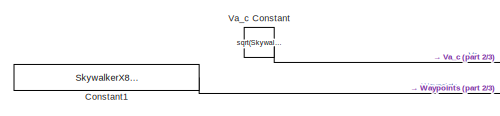
[diagram: root canvas - part 1/3, top left region]
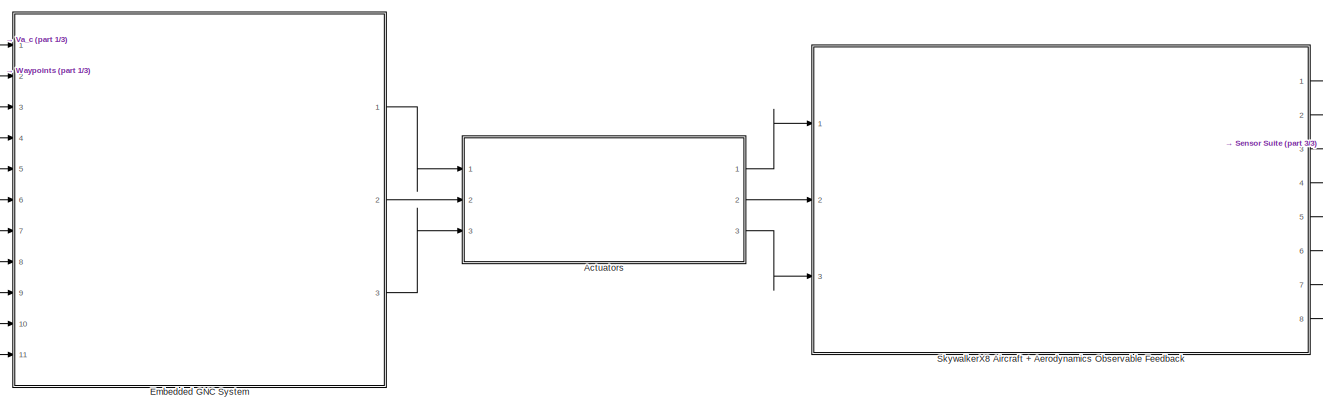
[diagram: root canvas - part 2/3, top center region]
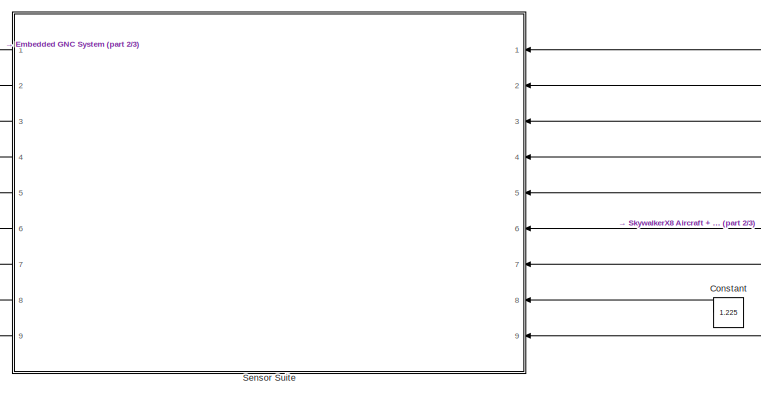
[diagram: root canvas - part 3/3, bottom center region]
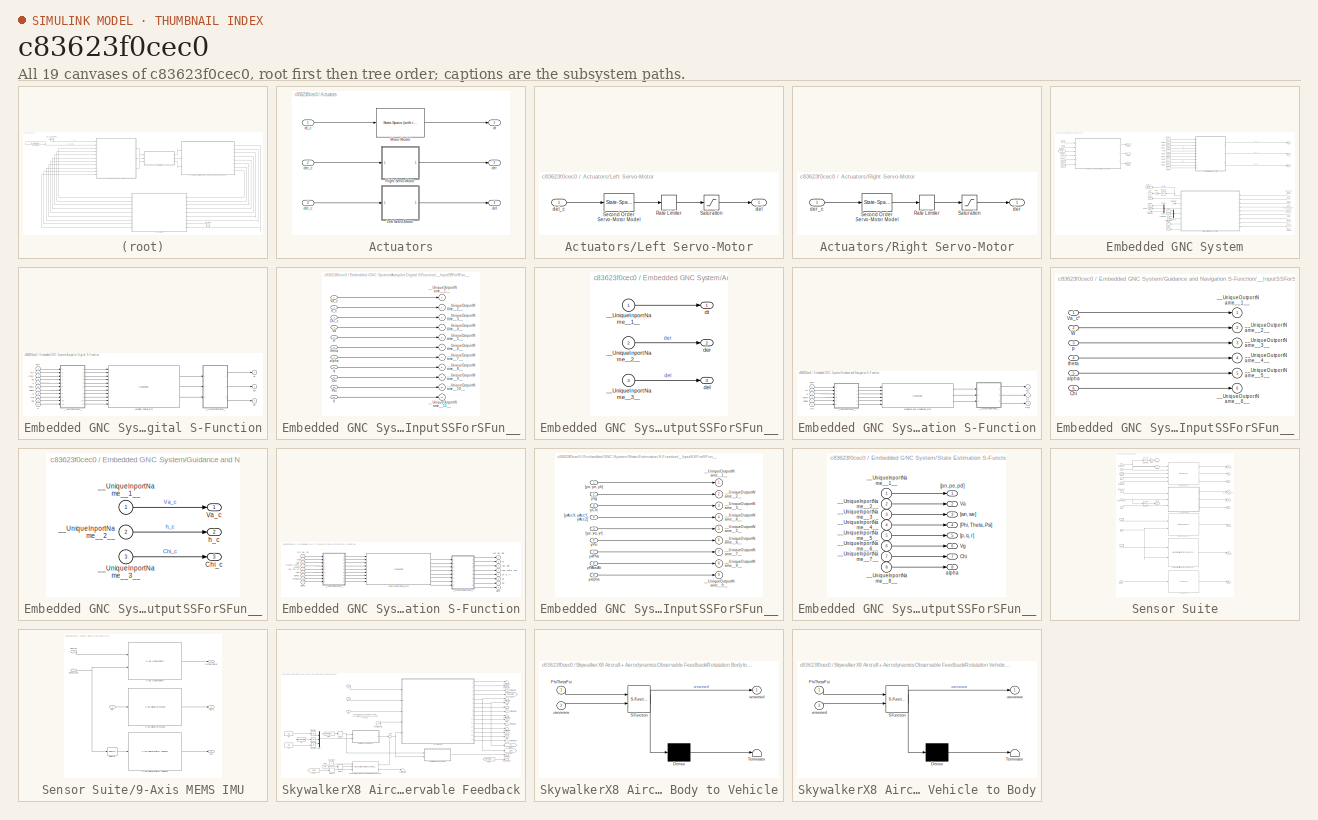
[diagram: thumbnail index - all 19 canvases of the model, root first then tree order]
MODEL slx_c83623f0cec0
KIND model
CONFIG AbsTol = auto
CONFIG EnableMultiTasking = off
CONFIG FixedStep = 0.001
CONFIG MaxStep = auto
CONFIG MinStep = auto
CONFIG RelTol = 1e-3
CONFIG SampleTimeConstraint = Unconstrained
CONFIG Solver = FixedStepAuto
CONFIG SolverName = FixedStepAuto
CONFIG StartTime = 0.0
CONFIG StopTime = 375
BLOCK [SubSystem] Actuators
  Ports = [3, 3]
  RequestExecContextInheritance = off
BLOCK [SubSystem] Actuators/Left Servo-Motor
  Ports = [1, 1]
  RequestExecContextInheritance = off
BLOCK [RateLimiter] Actuators/Left Servo-Motor/Rate Limiter
  Commented = through
  FallingSlewLimit = -SkywalkerX8.Actuators.Servos.RateLimit
  InitialCondition = SkywalkerX8.InitialConditions.de*0.5 + SkywalkerX8.InitialConditions.da*0.5
  RisingSlewLimit = SkywalkerX8.Actuators.Servos.RateLimit
  SampleTimeMode = inherited
BLOCK [Saturate] Actuators/Left Servo-Motor/Saturation
  InputPortMap = u0
  LowerLimit = SkywalkerX8.Actuators.Servos.LowerSaturation
  Ports = [1, 1]
  UpperLimit = SkywalkerX8.Actuators.Servos.UpperSaturation
BLOCK [Reference] Actuators/Left Servo-Motor/Second Order Servo-Motor Model  REF=simulink_extras/Additional
Linear/State-Space
(with initial outputs)
  Ports = [1, 1]
  SourceBlock = simulink_extras/Additional\nLinear/State-Space\n(with initial outputs)
  SourceProductBaseCode = SL
  SourceProductName = Simulink
  SourceType = State-Space with Initial Outputs
BLOCK [Outport] Actuators/Left Servo-Motor/del
  IconDisplay = Port number
BLOCK [Inport] Actuators/Left Servo-Motor/del_c
  IconDisplay = Port number
BLOCK [Reference] Actuators/Motor Model  REF=simulink_extras/Additional
Linear/State-Space
(with initial outputs)
  Ports = [1, 1]
  SourceBlock = simulink_extras/Additional\nLinear/State-Space\n(with initial outputs)
  SourceProductBaseCode = SL
  SourceProductName = Simulink
  SourceType = State-Space with Initial Outputs
BLOCK [SubSystem] Actuators/Right Servo-Motor
  Ports = [1, 1]
  RequestExecContextInheritance = off
BLOCK [RateLimiter] Actuators/Right Servo-Motor/Rate Limiter
  Commented = through
  FallingSlewLimit = -SkywalkerX8.Actuators.Servos.RateLimit
  InitialCondition = SkywalkerX8.InitialConditions.de*0.5 - SkywalkerX8.InitialConditions.da*0.5
  RisingSlewLimit = SkywalkerX8.Actuators.Servos.RateLimit
  SampleTimeMode = inherited
BLOCK [Saturate] Actuators/Right Servo-Motor/Saturation
  InputPortMap = u0
  LowerLimit = SkywalkerX8.Actuators.Servos.LowerSaturation
  Ports = [1, 1]
  UpperLimit = SkywalkerX8.Actuators.Servos.UpperSaturation
BLOCK [Reference] Actuators/Right Servo-Motor/Second Order Servo-Motor Model  REF=simulink_extras/Additional
Linear/State-Space
(with initial outputs)
  Ports = [1, 1]
  SourceBlock = simulink_extras/Additional\nLinear/State-Space\n(with initial outputs)
  SourceProductBaseCode = SL
  SourceProductName = Simulink
  SourceType = State-Space with Initial Outputs
BLOCK [Outport] Actuators/Right Servo-Motor/der
  IconDisplay = Port number
BLOCK [Inport] Actuators/Right Servo-Motor/der_c
  IconDisplay = Port number
BLOCK [Outport] Actuators/del
  IconDisplay = Port number
  Port = 3
BLOCK [Inport] Actuators/del_c
  IconDisplay = Port number
  Port = 3
BLOCK [Outport] Actuators/der
  IconDisplay = Port number
  Port = 2
BLOCK [Inport] Actuators/der_c
  IconDisplay = Port number
  Port = 2
BLOCK [Outport] Actuators/dt
  IconDisplay = Port number
BLOCK [Inport] Actuators/dt_c
  IconDisplay = Port number
BLOCK [Constant] Constant
  Value = 1.225
BLOCK [Constant] Constant1
  Value = SkywalkerX8.Test.AlternateWaypoints
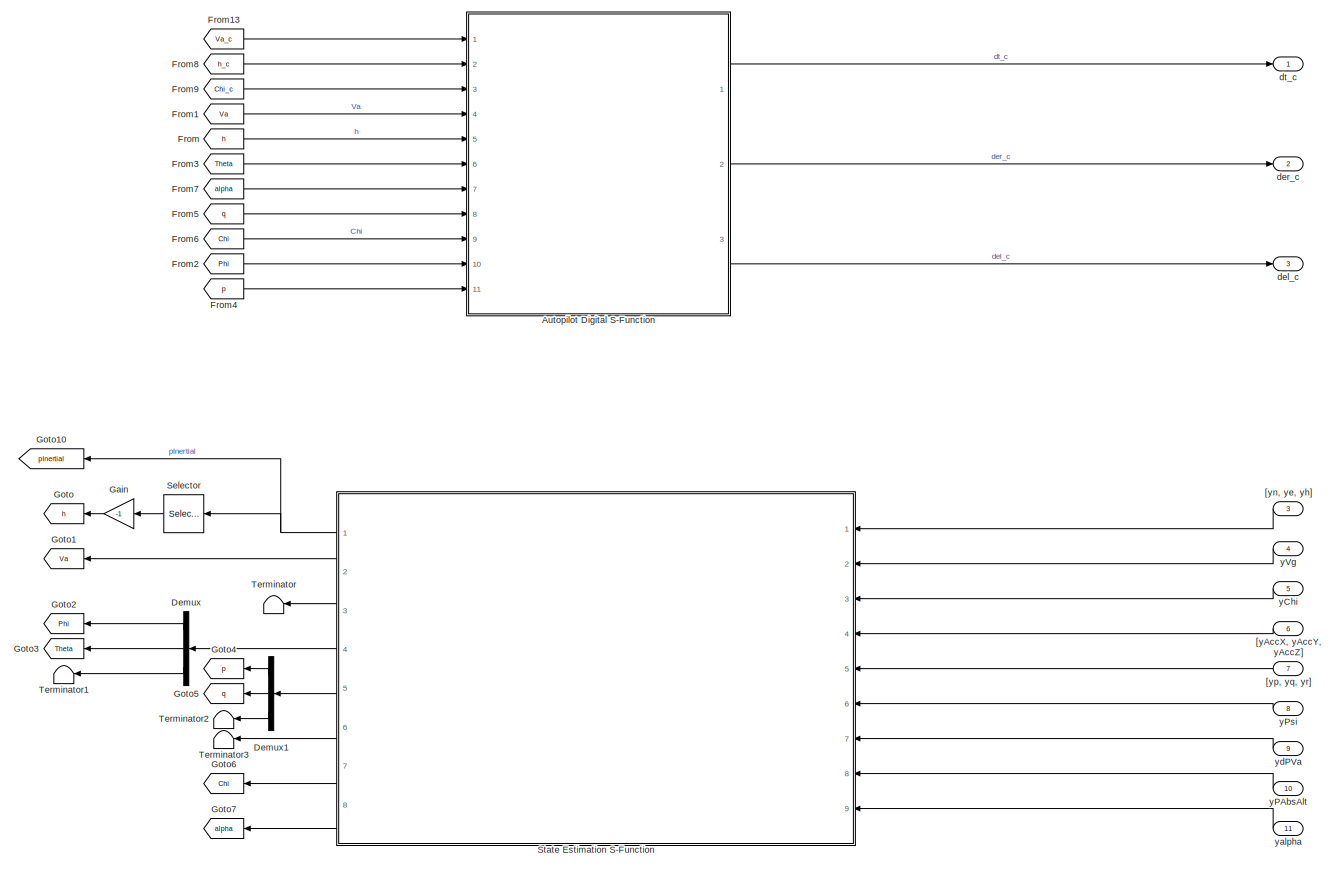
[diagram: Embedded GNC System - part 1/2, right side, full height]
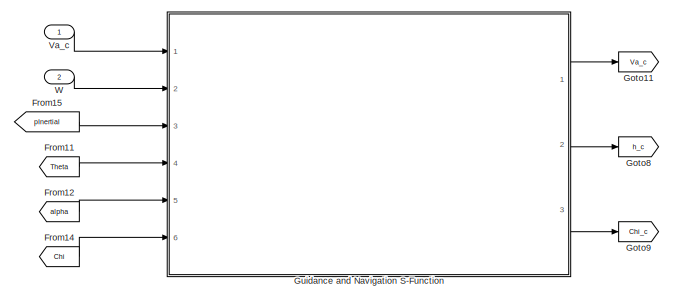
[diagram: Embedded GNC System - part 2/2, top left region]
BLOCK [SubSystem] Embedded GNC System
  Ports = [11, 3]
  RequestExecContextInheritance = off
BLOCK [SubSystem] Embedded GNC System/Autopilot Digital S-Function
  Ports = [11, 3]
  RequestExecContextInheritance = off
BLOCK [S-Function] Embedded GNC System/Autopilot Digital S-Function/Autopilot Digital_sfcn
  CopyFcn = if ~strcmp(get_param(gcb,'Linkstatus'),'none') && ...\n~strcmp(get_param(gcb,'Linkstatus'),'implicit')      \n  set_param(gcb,'LinkStatus','none');                \nend
  EnableBusSupport = off
  FunctionName = Autopilot_sf
  Ports = [11, 3]
  SFcnIsStateOwnerBlock = on
  SFcnStateName = DWORK0
  SFunctionDeploymentMode = off
BLOCK [Inport] Embedded GNC System/Autopilot Digital S-Function/Chi
  IconDisplay = Port number
  Port = 9
BLOCK [Inport] Embedded GNC System/Autopilot Digital S-Function/Chi_c
  IconDisplay = Port number
  Port = 3
BLOCK [Inport] Embedded GNC System/Autopilot Digital S-Function/Phi
  IconDisplay = Port number
  Port = 10
BLOCK [Inport] Embedded GNC System/Autopilot Digital S-Function/Va
  IconDisplay = Port number
  Port = 4
BLOCK [Inport] Embedded GNC System/Autopilot Digital S-Function/Va_c
  IconDisplay = Port number
BLOCK [SubSystem] Embedded GNC System/Autopilot Digital S-Function/__InputSSForSFun__
  PermitHierarchicalResolution = ExplicitOnly
  Ports = [11, 11]
  RequestExecContextInheritance = off
BLOCK [Inport] Embedded GNC System/Autopilot Digital S-Function/__InputSSForSFun__/Chi
  IconDisplay = Port number
  Port = 9
BLOCK [Inport] Embedded GNC System/Autopilot Digital S-Function/__InputSSForSFun__/Chi_c
  IconDisplay = Port number
  Port = 3
BLOCK [Inport] Embedded GNC System/Autopilot Digital S-Function/__InputSSForSFun__/Phi
  IconDisplay = Port number
  Port = 10
BLOCK [Inport] Embedded GNC System/Autopilot Digital S-Function/__InputSSForSFun__/Va
  IconDisplay = Port number
  Port = 4
BLOCK [Inport] Embedded GNC System/Autopilot Digital S-Function/__InputSSForSFun__/Va_c
  IconDisplay = Port number
BLOCK [Outport] Embedded GNC System/Autopilot Digital S-Function/__InputSSForSFun__/__UniqueOutportName__10__
  IconDisplay = Port number
  Port = 10
BLOCK [Outport] Embedded GNC System/Autopilot Digital S-Function/__InputSSForSFun__/__UniqueOutportName__11__
  IconDisplay = Port number
  Port = 11
BLOCK [Outport] Embedded GNC System/Autopilot Digital S-Function/__InputSSForSFun__/__UniqueOutportName__1__
  IconDisplay = Port number
BLOCK [Outport] Embedded GNC System/Autopilot Digital S-Function/__InputSSForSFun__/__UniqueOutportName__2__
  IconDisplay = Port number
  Port = 2
BLOCK [Outport] Embedded GNC System/Autopilot Digital S-Function/__InputSSForSFun__/__UniqueOutportName__3__
  IconDisplay = Port number
  Port = 3
BLOCK [Outport] Embedded GNC System/Autopilot Digital S-Function/__InputSSForSFun__/__UniqueOutportName__4__
  IconDisplay = Port number
  Port = 4
BLOCK [Outport] Embedded GNC System/Autopilot Digital S-Function/__InputSSForSFun__/__UniqueOutportName__5__
  IconDisplay = Port number
  Port = 5
BLOCK [Outport] Embedded GNC System/Autopilot Digital S-Function/__InputSSForSFun__/__UniqueOutportName__6__
  IconDisplay = Port number
  Port = 6
BLOCK [Outport] Embedded GNC System/Autopilot Digital S-Function/__InputSSForSFun__/__UniqueOutportName__7__
  IconDisplay = Port number
  Port = 7
BLOCK [Outport] Embedded GNC System/Autopilot Digital S-Function/__InputSSForSFun__/__UniqueOutportName__8__
  IconDisplay = Port number
  Port = 8
BLOCK [Outport] Embedded GNC System/Autopilot Digital S-Function/__InputSSForSFun__/__UniqueOutportName__9__
  IconDisplay = Port number
  Port = 9
BLOCK [Inport] Embedded GNC System/Autopilot Digital S-Function/__InputSSForSFun__/alpha
  IconDisplay = Port number
  Port = 7
BLOCK [Inport] Embedded GNC System/Autopilot Digital S-Function/__InputSSForSFun__/h
  IconDisplay = Port number
  Port = 5
BLOCK [Inport] Embedded GNC System/Autopilot Digital S-Function/__InputSSForSFun__/h_c
  IconDisplay = Port number
  Port = 2
BLOCK [Inport] Embedded GNC System/Autopilot Digital S-Function/__InputSSForSFun__/p
  IconDisplay = Port number
  Port = 11
BLOCK [Inport] Embedded GNC System/Autopilot Digital S-Function/__InputSSForSFun__/q
  IconDisplay = Port number
  Port = 8
BLOCK [Inport] Embedded GNC System/Autopilot Digital S-Function/__InputSSForSFun__/theta
  IconDisplay = Port number
  Port = 6
BLOCK [SubSystem] Embedded GNC System/Autopilot Digital S-Function/__OutputSSForSFun__
  PermitHierarchicalResolution = ExplicitOnly
  Ports = [3, 3]
  RequestExecContextInheritance = off
BLOCK [Inport] Embedded GNC System/Autopilot Digital S-Function/__OutputSSForSFun__/__UniqueInportName__1__
  IconDisplay = Port number
BLOCK [Inport] Embedded GNC System/Autopilot Digital S-Function/__OutputSSForSFun__/__UniqueInportName__2__
  IconDisplay = Port number
  Port = 2
BLOCK [Inport] Embedded GNC System/Autopilot Digital S-Function/__OutputSSForSFun__/__UniqueInportName__3__
  IconDisplay = Port number
  Port = 3
BLOCK [Outport] Embedded GNC System/Autopilot Digital S-Function/__OutputSSForSFun__/del
  IconDisplay = Port number
  Port = 3
BLOCK [Outport] Embedded GNC System/Autopilot Digital S-Function/__OutputSSForSFun__/der
  IconDisplay = Port number
  Port = 2
BLOCK [Outport] Embedded GNC System/Autopilot Digital S-Function/__OutputSSForSFun__/dt
  IconDisplay = Port number
BLOCK [Inport] Embedded GNC System/Autopilot Digital S-Function/alpha
  IconDisplay = Port number
  Port = 7
BLOCK [Outport] Embedded GNC System/Autopilot Digital S-Function/del
  IconDisplay = Port number
  Port = 3
BLOCK [Outport] Embedded GNC System/Autopilot Digital S-Function/der
  IconDisplay = Port number
  Port = 2
BLOCK [Outport] Embedded GNC System/Autopilot Digital S-Function/dt
  IconDisplay = Port number
BLOCK [Inport] Embedded GNC System/Autopilot Digital S-Function/h
  IconDisplay = Port number
  Port = 5
BLOCK [Inport] Embedded GNC System/Autopilot Digital S-Function/h_c
  IconDisplay = Port number
  Port = 2
BLOCK [Inport] Embedded GNC System/Autopilot Digital S-Function/p
  IconDisplay = Port number
  Port = 11
BLOCK [Inport] Embedded GNC System/Autopilot Digital S-Function/q
  IconDisplay = Port number
  Port = 8
BLOCK [Inport] Embedded GNC System/Autopilot Digital S-Function/theta
  IconDisplay = Port number
  Port = 6
BLOCK [Demux] Embedded GNC System/Demux
  DisplayOption = bar
  Outputs = 3
  Ports = [1, 3]
BLOCK [Demux] Embedded GNC System/Demux1
  DisplayOption = bar
  Outputs = 3
  Ports = [1, 3]
BLOCK [From] Embedded GNC System/From
  GotoTag = h
BLOCK [From] Embedded GNC System/From1
  GotoTag = Va
BLOCK [From] Embedded GNC System/From11
  GotoTag = Theta
BLOCK [From] Embedded GNC System/From12
  GotoTag = alpha
BLOCK [From] Embedded GNC System/From13
  GotoTag = Va_c
BLOCK [From] Embedded GNC System/From14
  GotoTag = Chi
BLOCK [From] Embedded GNC System/From15
  GotoTag = pInertial
BLOCK [From] Embedded GNC System/From2
  GotoTag = Phi
BLOCK [From] Embedded GNC System/From3
  GotoTag = Theta
BLOCK [From] Embedded GNC System/From4
  GotoTag = p
BLOCK [From] Embedded GNC System/From5
  GotoTag = q
BLOCK [From] Embedded GNC System/From6
  GotoTag = Chi
BLOCK [From] Embedded GNC System/From7
  GotoTag = alpha
BLOCK [From] Embedded GNC System/From8
  GotoTag = h_c
BLOCK [From] Embedded GNC System/From9
  GotoTag = Chi_c
BLOCK [Gain] Embedded GNC System/Gain
  Gain = -1
  OutDataTypeStr = Inherit: Inherit via internal rule
  ParamDataTypeStr = Inherit: Inherit via internal rule
  SaturateOnIntegerOverflow = off
BLOCK [Goto] Embedded GNC System/Goto
  GotoTag = h
BLOCK [Goto] Embedded GNC System/Goto1
  GotoTag = Va
BLOCK [Goto] Embedded GNC System/Goto10
  GotoTag = pInertial
BLOCK [Goto] Embedded GNC System/Goto11
  GotoTag = Va_c
BLOCK [Goto] Embedded GNC System/Goto2
  GotoTag = Phi
BLOCK [Goto] Embedded GNC System/Goto3
  GotoTag = Theta
BLOCK [Goto] Embedded GNC System/Goto4
  GotoTag = p
BLOCK [Goto] Embedded GNC System/Goto5
  GotoTag = q
BLOCK [Goto] Embedded GNC System/Goto6
  GotoTag = Chi
BLOCK [Goto] Embedded GNC System/Goto7
  GotoTag = alpha
BLOCK [Goto] Embedded GNC System/Goto8
  GotoTag = h_c
BLOCK [Goto] Embedded GNC System/Goto9
  GotoTag = Chi_c
BLOCK [SubSystem] Embedded GNC System/Guidance and Navigation S-Function
  Ports = [6, 3]
  RequestExecContextInheritance = off
BLOCK [Inport] Embedded GNC System/Guidance and Navigation S-Function/Chi
  IconDisplay = Port number
  Port = 6
BLOCK [Outport] Embedded GNC System/Guidance and Navigation S-Function/Chi_c
  IconDisplay = Port number
  Port = 3
BLOCK [S-Function] Embedded GNC System/Guidance and Navigation S-Function/Guidance and Navigation_sfcn
  CopyFcn = if ~strcmp(get_param(gcb,'Linkstatus'),'none') && ...\n~strcmp(get_param(gcb,'Linkstatus'),'implicit')      \n  set_param(gcb,'LinkStatus','none');                \nend
  EnableBusSupport = off
  FunctionName = Guidance_sf
  Ports = [6, 3]
  SFcnIsStateOwnerBlock = on
  SFcnStateName = DWORK0
  SFunctionDeploymentMode = off
BLOCK [Outport] Embedded GNC System/Guidance and Navigation S-Function/Va_c
  IconDisplay = Port number
BLOCK [Inport] Embedded GNC System/Guidance and Navigation S-Function/Va_c*
  IconDisplay = Port number
BLOCK [Inport] Embedded GNC System/Guidance and Navigation S-Function/W
  IconDisplay = Port number
  Port = 2
BLOCK [SubSystem] Embedded GNC System/Guidance and Navigation S-Function/__InputSSForSFun__
  PermitHierarchicalResolution = ExplicitOnly
  Ports = [6, 6]
  RequestExecContextInheritance = off
BLOCK [Inport] Embedded GNC System/Guidance and Navigation S-Function/__InputSSForSFun__/Chi
  IconDisplay = Port number
  Port = 6
BLOCK [Inport] Embedded GNC System/Guidance and Navigation S-Function/__InputSSForSFun__/Va_c*
  IconDisplay = Port number
BLOCK [Inport] Embedded GNC System/Guidance and Navigation S-Function/__InputSSForSFun__/W
  IconDisplay = Port number
  Port = 2
BLOCK [Outport] Embedded GNC System/Guidance and Navigation S-Function/__InputSSForSFun__/__UniqueOutportName__1__
  IconDisplay = Port number
BLOCK [Outport] Embedded GNC System/Guidance and Navigation S-Function/__InputSSForSFun__/__UniqueOutportName__2__
  IconDisplay = Port number
  Port = 2
BLOCK [Outport] Embedded GNC System/Guidance and Navigation S-Function/__InputSSForSFun__/__UniqueOutportName__3__
  IconDisplay = Port number
  Port = 3
BLOCK [Outport] Embedded GNC System/Guidance and Navigation S-Function/__InputSSForSFun__/__UniqueOutportName__4__
  IconDisplay = Port number
  Port = 4
BLOCK [Outport] Embedded GNC System/Guidance and Navigation S-Function/__InputSSForSFun__/__UniqueOutportName__5__
  IconDisplay = Port number
  Port = 5
BLOCK [Outport] Embedded GNC System/Guidance and Navigation S-Function/__InputSSForSFun__/__UniqueOutportName__6__
  IconDisplay = Port number
  Port = 6
BLOCK [Inport] Embedded GNC System/Guidance and Navigation S-Function/__InputSSForSFun__/alpha
  IconDisplay = Port number
  Port = 5
BLOCK [Inport] Embedded GNC System/Guidance and Navigation S-Function/__InputSSForSFun__/p
  IconDisplay = Port number
  Port = 3
BLOCK [Inport] Embedded GNC System/Guidance and Navigation S-Function/__InputSSForSFun__/theta
  IconDisplay = Port number
  Port = 4
BLOCK [SubSystem] Embedded GNC System/Guidance and Navigation S-Function/__OutputSSForSFun__
  PermitHierarchicalResolution = ExplicitOnly
  Ports = [3, 3]
  RequestExecContextInheritance = off
BLOCK [Outport] Embedded GNC System/Guidance and Navigation S-Function/__OutputSSForSFun__/Chi_c
  IconDisplay = Port number
  Port = 3
BLOCK [Outport] Embedded GNC System/Guidance and Navigation S-Function/__OutputSSForSFun__/Va_c
  IconDisplay = Port number
BLOCK [Inport] Embedded GNC System/Guidance and Navigation S-Function/__OutputSSForSFun__/__UniqueInportName__1__
  IconDisplay = Port number
BLOCK [Inport] Embedded GNC System/Guidance and Navigation S-Function/__OutputSSForSFun__/__UniqueInportName__2__
  IconDisplay = Port number
  Port = 2
BLOCK [Inport] Embedded GNC System/Guidance and Navigation S-Function/__OutputSSForSFun__/__UniqueInportName__3__
  IconDisplay = Port number
  Port = 3
BLOCK [Outport] Embedded GNC System/Guidance and Navigation S-Function/__OutputSSForSFun__/h_c
  IconDisplay = Port number
  Port = 2
BLOCK [Inport] Embedded GNC System/Guidance and Navigation S-Function/alpha
  IconDisplay = Port number
  Port = 5
BLOCK [Outport] Embedded GNC System/Guidance and Navigation S-Function/h_c
  IconDisplay = Port number
  Port = 2
BLOCK [Inport] Embedded GNC System/Guidance and Navigation S-Function/p
  IconDisplay = Port number
  Port = 3
BLOCK [Inport] Embedded GNC System/Guidance and Navigation S-Function/theta
  IconDisplay = Port number
  Port = 4
BLOCK [Selector] Embedded GNC System/Selector
  IndexOptions = Index vector (dialog)
  Indices = 3
  InputPortWidth = 3
  OutputSizes = 1
  Ports = [1, 1]
BLOCK [SubSystem] Embedded GNC System/State Estimation S-Function
  Ports = [9, 8]
  RequestExecContextInheritance = off
BLOCK [Outport] Embedded GNC System/State Estimation S-Function/Chi
  IconDisplay = Port number
  Port = 7
BLOCK [S-Function] Embedded GNC System/State Estimation S-Function/State Estimation_sfcn
  CopyFcn = if ~strcmp(get_param(gcb,'Linkstatus'),'none') && ...\n~strcmp(get_param(gcb,'Linkstatus'),'implicit')      \n  set_param(gcb,'LinkStatus','none');                \nend
  EnableBusSupport = off
  FunctionName = State_sf
  Ports = [9, 8]
  SFcnIsStateOwnerBlock = on
  SFcnStateName = DWORK0
  SFunctionDeploymentMode = off
BLOCK [Outport] Embedded GNC System/State Estimation S-Function/Va
  IconDisplay = Port number
  Port = 2
BLOCK [Outport] Embedded GNC System/State Estimation S-Function/Vg
  IconDisplay = Port number
  Port = 6
BLOCK [Outport] Embedded GNC System/State Estimation S-Function/[Phi, Theta, Psi]
  IconDisplay = Port number
  Port = 4
BLOCK [Outport] Embedded GNC System/State Estimation S-Function/[p, q, r]
  IconDisplay = Port number
  Port = 5
BLOCK [Outport] Embedded GNC System/State Estimation S-Function/[pn, pe, pd]
  IconDisplay = Port number
BLOCK [Outport] Embedded GNC System/State Estimation S-Function/[wn, we]
  IconDisplay = Port number
  Port = 3
BLOCK [Inport] Embedded GNC System/State Estimation S-Function/[yAccX, yAccY, yAccZ]
  IconDisplay = Port number
  Port = 4
  PortDimensions = 3
BLOCK [Inport] Embedded GNC System/State Estimation S-Function/[yn, ye, yh]
  IconDisplay = Port number
  PortDimensions = 3
BLOCK [Inport] Embedded GNC System/State Estimation S-Function/[yp, yq, yr]
  IconDisplay = Port number
  Port = 5
  PortDimensions = 3
BLOCK [SubSystem] Embedded GNC System/State Estimation S-Function/__InputSSForSFun__
  PermitHierarchicalResolution = ExplicitOnly
  Ports = [9, 9]
  RequestExecContextInheritance = off
BLOCK [Inport] Embedded GNC System/State Estimation S-Function/__InputSSForSFun__/[yAccX, yAccY, yAccZ]
  IconDisplay = Port number
  Port = 4
  PortDimensions = 3
BLOCK [Inport] Embedded GNC System/State Estimation S-Function/__InputSSForSFun__/[yn, ye, yh]
  IconDisplay = Port number
  PortDimensions = 3
BLOCK [Inport] Embedded GNC System/State Estimation S-Function/__InputSSForSFun__/[yp, yq, yr]
  IconDisplay = Port number
  Port = 5
  PortDimensions = 3
BLOCK [Outport] Embedded GNC System/State Estimation S-Function/__InputSSForSFun__/__UniqueOutportName__1__
  IconDisplay = Port number
BLOCK [Outport] Embedded GNC System/State Estimation S-Function/__InputSSForSFun__/__UniqueOutportName__2__
  IconDisplay = Port number
  Port = 2
BLOCK [Outport] Embedded GNC System/State Estimation S-Function/__InputSSForSFun__/__UniqueOutportName__3__
  IconDisplay = Port number
  Port = 3
BLOCK [Outport] Embedded GNC System/State Estimation S-Function/__InputSSForSFun__/__UniqueOutportName__4__
  IconDisplay = Port number
  Port = 4
BLOCK [Outport] Embedded GNC System/State Estimation S-Function/__InputSSForSFun__/__UniqueOutportName__5__
  IconDisplay = Port number
  Port = 5
BLOCK [Outport] Embedded GNC System/State Estimation S-Function/__InputSSForSFun__/__UniqueOutportName__6__
  IconDisplay = Port number
  Port = 6
BLOCK [Outport] Embedded GNC System/State Estimation S-Function/__InputSSForSFun__/__UniqueOutportName__7__
  IconDisplay = Port number
  Port = 7
BLOCK [Outport] Embedded GNC System/State Estimation S-Function/__InputSSForSFun__/__UniqueOutportName__8__
  IconDisplay = Port number
  Port = 8
BLOCK [Outport] Embedded GNC System/State Estimation S-Function/__InputSSForSFun__/__UniqueOutportName__9__
  IconDisplay = Port number
  Port = 9
BLOCK [Inport] Embedded GNC System/State Estimation S-Function/__InputSSForSFun__/yChi
  IconDisplay = Port number
  Port = 3
BLOCK [Inport] Embedded GNC System/State Estimation S-Function/__InputSSForSFun__/yPAbsAlt
  IconDisplay = Port number
  Port = 8
BLOCK [Inport] Embedded GNC System/State Estimation S-Function/__InputSSForSFun__/yPsi
  IconDisplay = Port number
  Port = 6
BLOCK [Inport] Embedded GNC System/State Estimation S-Function/__InputSSForSFun__/yVg
  IconDisplay = Port number
  Port = 2
BLOCK [Inport] Embedded GNC System/State Estimation S-Function/__InputSSForSFun__/yalpha
  IconDisplay = Port number
  Port = 9
BLOCK [Inport] Embedded GNC System/State Estimation S-Function/__InputSSForSFun__/ydPVa
  IconDisplay = Port number
  Port = 7
BLOCK [SubSystem] Embedded GNC System/State Estimation S-Function/__OutputSSForSFun__
  PermitHierarchicalResolution = ExplicitOnly
  Ports = [8, 8]
  RequestExecContextInheritance = off
BLOCK [Outport] Embedded GNC System/State Estimation S-Function/__OutputSSForSFun__/Chi
  IconDisplay = Port number
  Port = 7
BLOCK [Outport] Embedded GNC System/State Estimation S-Function/__OutputSSForSFun__/Va
  IconDisplay = Port number
  Port = 2
BLOCK [Outport] Embedded GNC System/State Estimation S-Function/__OutputSSForSFun__/Vg
  IconDisplay = Port number
  Port = 6
BLOCK [Outport] Embedded GNC System/State Estimation S-Function/__OutputSSForSFun__/[Phi, Theta, Psi]
  IconDisplay = Port number
  Port = 4
BLOCK [Outport] Embedded GNC System/State Estimation S-Function/__OutputSSForSFun__/[p, q, r]
  IconDisplay = Port number
  Port = 5
BLOCK [Outport] Embedded GNC System/State Estimation S-Function/__OutputSSForSFun__/[pn, pe, pd]
  IconDisplay = Port number
BLOCK [Outport] Embedded GNC System/State Estimation S-Function/__OutputSSForSFun__/[wn, we]
  IconDisplay = Port number
  Port = 3
BLOCK [Inport] Embedded GNC System/State Estimation S-Function/__OutputSSForSFun__/__UniqueInportName__1__
  IconDisplay = Port number
BLOCK [Inport] Embedded GNC System/State Estimation S-Function/__OutputSSForSFun__/__UniqueInportName__2__
  IconDisplay = Port number
  Port = 2
BLOCK [Inport] Embedded GNC System/State Estimation S-Function/__OutputSSForSFun__/__UniqueInportName__3__
  IconDisplay = Port number
  Port = 3
BLOCK [Inport] Embedded GNC System/State Estimation S-Function/__OutputSSForSFun__/__UniqueInportName__4__
  IconDisplay = Port number
  Port = 4
BLOCK [Inport] Embedded GNC System/State Estimation S-Function/__OutputSSForSFun__/__UniqueInportName__5__
  IconDisplay = Port number
  Port = 5
BLOCK [Inport] Embedded GNC System/State Estimation S-Function/__OutputSSForSFun__/__UniqueInportName__6__
  IconDisplay = Port number
  Port = 6
BLOCK [Inport] Embedded GNC System/State Estimation S-Function/__OutputSSForSFun__/__UniqueInportName__7__
  IconDisplay = Port number
  Port = 7
BLOCK [Inport] Embedded GNC System/State Estimation S-Function/__OutputSSForSFun__/__UniqueInportName__8__
  IconDisplay = Port number
  Port = 8
BLOCK [Outport] Embedded GNC System/State Estimation S-Function/__OutputSSForSFun__/alpha
  IconDisplay = Port number
  Port = 8
BLOCK [Outport] Embedded GNC System/State Estimation S-Function/alpha
  IconDisplay = Port number
  Port = 8
BLOCK [Inport] Embedded GNC System/State Estimation S-Function/yChi
  IconDisplay = Port number
  Port = 3
BLOCK [Inport] Embedded GNC System/State Estimation S-Function/yPAbsAlt
  IconDisplay = Port number
  Port = 8
BLOCK [Inport] Embedded GNC System/State Estimation S-Function/yPsi
  IconDisplay = Port number
  Port = 6
BLOCK [Inport] Embedded GNC System/State Estimation S-Function/yVg
  IconDisplay = Port number
  Port = 2
BLOCK [Inport] Embedded GNC System/State Estimation S-Function/yalpha
  IconDisplay = Port number
  Port = 9
BLOCK [Inport] Embedded GNC System/State Estimation S-Function/ydPVa
  IconDisplay = Port number
  Port = 7
BLOCK [Terminator] Embedded GNC System/Terminator
BLOCK [Terminator] Embedded GNC System/Terminator1
BLOCK [Terminator] Embedded GNC System/Terminator2
BLOCK [Terminator] Embedded GNC System/Terminator3
BLOCK [Inport] Embedded GNC System/Va_c
  IconDisplay = Port number
BLOCK [Inport] Embedded GNC System/W
  IconDisplay = Port number
  Port = 2
BLOCK [Inport] Embedded GNC System/[yAccX, yAccY, yAccZ]
  IconDisplay = Port number
  Port = 6
BLOCK [Inport] Embedded GNC System/[yn, ye, yh]
  IconDisplay = Port number
  Port = 3
BLOCK [Inport] Embedded GNC System/[yp, yq, yr]
  IconDisplay = Port number
  Port = 7
BLOCK [Outport] Embedded GNC System/del_c
  IconDisplay = Port number
  Port = 3
BLOCK [Outport] Embedded GNC System/der_c
  IconDisplay = Port number
  Port = 2
BLOCK [Outport] Embedded GNC System/dt_c
  IconDisplay = Port number
BLOCK [Inport] Embedded GNC System/yChi
  IconDisplay = Port number
  Port = 5
BLOCK [Inport] Embedded GNC System/yPAbsAlt
  IconDisplay = Port number
  Port = 10
BLOCK [Inport] Embedded GNC System/yPsi
  IconDisplay = Port number
  Port = 8
BLOCK [Inport] Embedded GNC System/yVg
  IconDisplay = Port number
  Port = 4
BLOCK [Inport] Embedded GNC System/yalpha
  IconDisplay = Port number
  Port = 11
BLOCK [Inport] Embedded GNC System/ydPVa
  IconDisplay = Port number
  Port = 9
BLOCK [SubSystem] Sensor Suite
  Ports = [9, 9]
  RequestExecContextInheritance = off
BLOCK [SubSystem] Sensor Suite/9-Axis MEMS IMU
  Ports = [3, 3]
  RequestExecContextInheritance = off
BLOCK [Reference] Sensor Suite/9-Axis MEMS IMU/3-Axis Accelerometer  REF=sensors/3-Axis Accelerometer  (lib defined in slx_03e243f1d19c, slx_0ec61ea8f7b5, +8 more)
  Ports = [2, 1]
  SourceBlock = sensors/3-Axis Accelerometer
BLOCK [Reference] Sensor Suite/9-Axis MEMS IMU/3-Axis MEMS Gyroscope  REF=sensors/3-Axis MEMS Gyroscope  (lib defined in slx_03e243f1d19c, slx_0ec61ea8f7b5, +8 more)
  Ports = [1, 1]
  SourceBlock = sensors/3-Axis MEMS Gyroscope
BLOCK [Reference] Sensor Suite/9-Axis MEMS IMU/3-Axis Magnetometer Compass  REF=sensors/3-Axis Magnetometer Compass  (lib defined in slx_03e243f1d19c, slx_0ec61ea8f7b5, +8 more)
  Ports = [1, 1]
  SourceBlock = sensors/3-Axis Magnetometer Compass
BLOCK [Inport] Sensor Suite/9-Axis MEMS IMU/PhiThetaPsi
  IconDisplay = Port number
  Port = 2
BLOCK [Selector] Sensor Suite/9-Axis MEMS IMU/Selector
  IndexOptions = Index vector (dialog)
  Indices = 3
  InputPortWidth = 3
  OutputSizes = 1
  Ports = [1, 1]
BLOCK [Inport] Sensor Suite/9-Axis MEMS IMU/ainertial
  IconDisplay = Port number
BLOCK [Inport] Sensor Suite/9-Axis MEMS IMU/pqr
  IconDisplay = Port number
  Port = 3
BLOCK [Outport] Sensor Suite/9-Axis MEMS IMU/yAccelerometer
  IconDisplay = Port number
BLOCK [Outport] Sensor Suite/9-Axis MEMS IMU/yGyro
  IconDisplay = Port number
  Port = 2
BLOCK [Outport] Sensor Suite/9-Axis MEMS IMU/yPsi
  IconDisplay = Port number
  Port = 3
BLOCK [Reference] Sensor Suite/Airspeed Sensor  REF=sensors/Airspeed Sensor  (lib defined in slx_03e243f1d19c, slx_0ec61ea8f7b5, +8 more)
  Ports = [2, 1]
  SourceBlock = sensors/Airspeed Sensor
BLOCK [Reference] Sensor Suite/AoA Sensor  REF=sensors/AoA Sensor  (lib defined in slx_03e243f1d19c, slx_0ec61ea8f7b5, +8 more)
  Ports = [1, 1]
  SourceBlock = sensors/AoA Sensor
BLOCK [Reference] Sensor Suite/Barometric Altitude Pressure Sensor  REF=sensors/Barometric Altitude Pressure Sensor  (lib defined in slx_03e243f1d19c, slx_0ec61ea8f7b5, +8 more)
  Ports = [2, 1]
  SourceBlock = sensors/Barometric Altitude Pressure Sensor
BLOCK [Inport] Sensor Suite/Chi
  IconDisplay = Port number
  Port = 3
BLOCK [From] Sensor Suite/From
  GotoTag = Psi
BLOCK [From] Sensor Suite/From1
  GotoTag = Va
BLOCK [From] Sensor Suite/From2
  GotoTag = h
BLOCK [Reference] Sensor Suite/GPS Sensor  REF=sensors/GPS Sensor  (lib defined in slx_03e243f1d19c, slx_0ec61ea8f7b5, +8 more)
  Ports = [5, 3]
  SourceBlock = sensors/GPS Sensor
BLOCK [Gain] Sensor Suite/Gain
  Gain = -1
  OutDataTypeStr = Inherit: Inherit via internal rule
  ParamDataTypeStr = Inherit: Inherit via internal rule
  SaturateOnIntegerOverflow = off
BLOCK [Goto] Sensor Suite/Goto
  GotoTag = Psi
BLOCK [Goto] Sensor Suite/Goto1
  GotoTag = Va
BLOCK [Goto] Sensor Suite/Goto2
  GotoTag = h
BLOCK [Inport] Sensor Suite/PhiThetaPsi
  IconDisplay = Port number
  Port = 6
BLOCK [Selector] Sensor Suite/Selector
  IndexOptions = Index vector (dialog)
  Indices = 3
  InputPortWidth = 3
  OutputSizes = 1
  Ports = [1, 1]
BLOCK [Selector] Sensor Suite/Selector1
  IndexOptions = Index vector (dialog)
  Indices = 3
  InputPortWidth = 3
  OutputSizes = 1
  Ports = [1, 1]
BLOCK [Inport] Sensor Suite/Va
  IconDisplay = Port number
  Port = 2
BLOCK [Inport] Sensor Suite/[ax, ay, az]
  IconDisplay = Port number
  Port = 5
BLOCK [Inport] Sensor Suite/[pn, pe, pd]
  IconDisplay = Port number
BLOCK [Inport] Sensor Suite/[wn, we, wd]
  IconDisplay = Port number
  Port = 4
BLOCK [Outport] Sensor Suite/[yAccX, yAccY, yAccZ]
  IconDisplay = Port number
  Port = 4
BLOCK [Outport] Sensor Suite/[yn, ye, yh]
  IconDisplay = Port number
BLOCK [Outport] Sensor Suite/[yp, yq, yr]
  IconDisplay = Port number
  Port = 5
BLOCK [Inport] Sensor Suite/alpha
  IconDisplay = Port number
  Port = 9
BLOCK [Inport] Sensor Suite/pqr
  IconDisplay = Port number
  Port = 7
BLOCK [Inport] Sensor Suite/rho
  IconDisplay = Port number
  Port = 8
BLOCK [Outport] Sensor Suite/yChi
  IconDisplay = Port number
  Port = 3
BLOCK [Outport] Sensor Suite/yPAbsAlt
  IconDisplay = Port number
  Port = 8
BLOCK [Outport] Sensor Suite/yPsi
  IconDisplay = Port number
  Port = 6
BLOCK [Outport] Sensor Suite/yVg
  IconDisplay = Port number
  Port = 2
BLOCK [Outport] Sensor Suite/yalpha
  IconDisplay = Port number
  Port = 9
BLOCK [Outport] Sensor Suite/ydPVa
  IconDisplay = Port number
  Port = 7
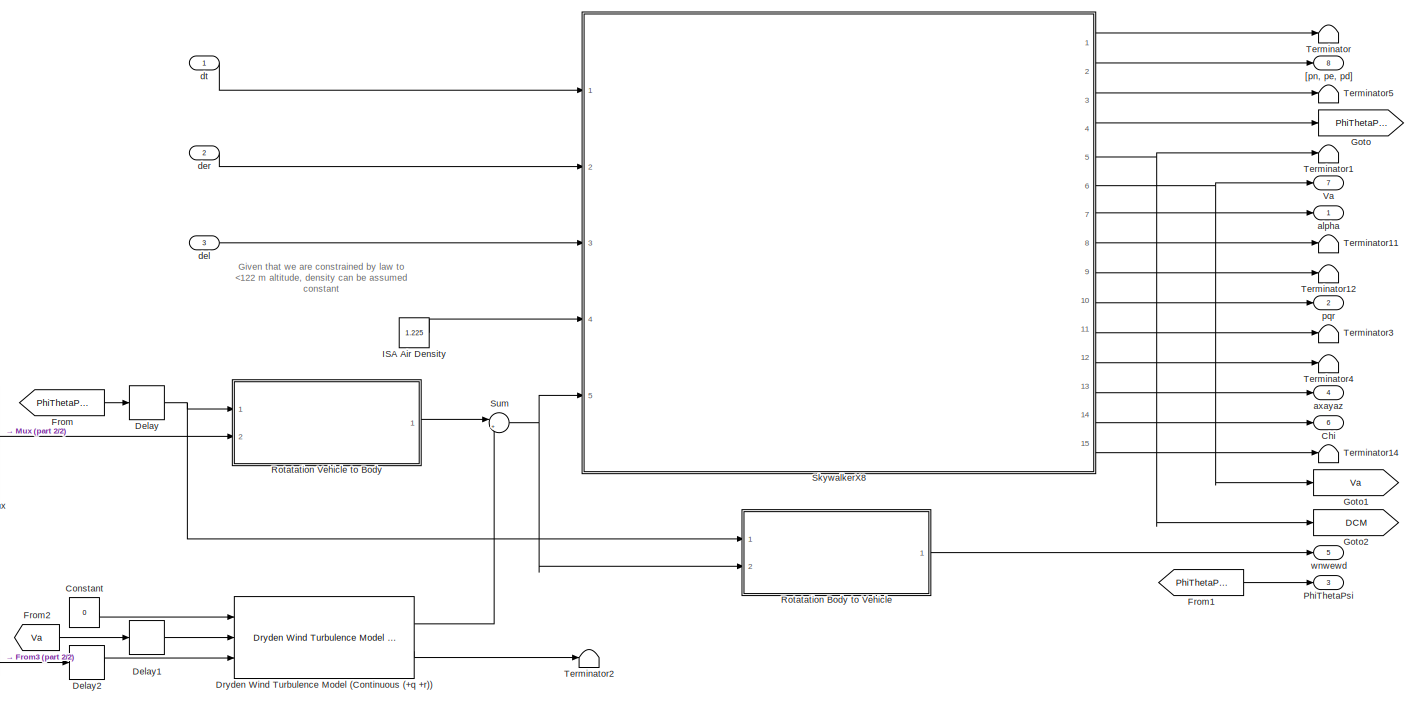
[diagram: SkywalkerX8 Aircraft + Aerodynamics Observable Feedback - part 1/2, most of the canvas]
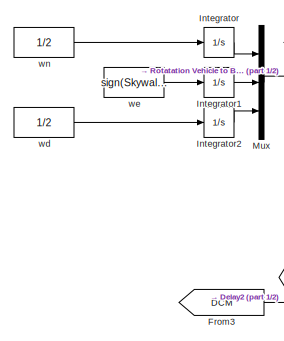
[diagram: SkywalkerX8 Aircraft + Aerodynamics Observable Feedback - part 2/2, bottom left region]
BLOCK [SubSystem] SkywalkerX8 Aircraft + Aerodynamics Observable Feedback
  Ports = [3, 8]
  RequestExecContextInheritance = off
BLOCK [Outport] SkywalkerX8 Aircraft + Aerodynamics Observable Feedback/Chi
  IconDisplay = Port number
  Port = 6
BLOCK [Constant] SkywalkerX8 Aircraft + Aerodynamics Observable Feedback/Constant
  Value = 0
BLOCK [Delay] SkywalkerX8 Aircraft + Aerodynamics Observable Feedback/Delay
  DelayLength = 1
  InitialCondition = SkywalkerX8.InitialConditions.PhiThetaPsi
  InputPortMap = u0
  Ports = [1, 1]
BLOCK [Delay] SkywalkerX8 Aircraft + Aerodynamics Observable Feedback/Delay1
  DelayLength = 1
  InitialCondition = sqrt(SkywalkerX8.InitialConditions.uvw*SkywalkerX8.InitialConditions.uvw')
  InputPortMap = u0
  Ports = [1, 1]
BLOCK [Delay] SkywalkerX8 Aircraft + Aerodynamics Observable Feedback/Delay2
  DelayLength = 1
  InitialCondition = zeros(3, 3)
  InputPortMap = u0
  Ports = [1, 1]
BLOCK [Reference] SkywalkerX8 Aircraft + Aerodynamics Observable Feedback/Dryden Wind Turbulence Model (Continuous (+q +r))  REF=aerolibwind2/Dryden Wind Turbulence Model 
(Continuous (+q -r))
  Ports = [3, 2]
  SourceBlock = aerolibwind2/Dryden Wind Turbulence Model \n(Continuous (+q -r))
  SourceProductBaseCode = AE
  SourceProductName = Aerospace Blockset
  SourceType = Wind Turbulence Model
BLOCK [From] SkywalkerX8 Aircraft + Aerodynamics Observable Feedback/From
  GotoTag = PhiThetaPsi
BLOCK [From] SkywalkerX8 Aircraft + Aerodynamics Observable Feedback/From1
  GotoTag = PhiThetaPsi
BLOCK [From] SkywalkerX8 Aircraft + Aerodynamics Observable Feedback/From2
  GotoTag = Va
BLOCK [From] SkywalkerX8 Aircraft + Aerodynamics Observable Feedback/From3
  GotoTag = DCM
BLOCK [Goto] SkywalkerX8 Aircraft + Aerodynamics Observable Feedback/Goto
  GotoTag = PhiThetaPsi
BLOCK [Goto] SkywalkerX8 Aircraft + Aerodynamics Observable Feedback/Goto1
  GotoTag = Va
BLOCK [Goto] SkywalkerX8 Aircraft + Aerodynamics Observable Feedback/Goto2
  GotoTag = DCM
BLOCK [Constant] SkywalkerX8 Aircraft + Aerodynamics Observable Feedback/ISA Air Density
  Value = 1.225
BLOCK [Integrator] SkywalkerX8 Aircraft + Aerodynamics Observable Feedback/Integrator
  LimitOutput = on
  LowerSaturationLimit = (SkywalkerX8.Ambient.Wind.wnwewd(1)<0)*SkywalkerX8.Ambient.Wind.wnwewd(1)-1E-06
  Ports = [1, 1]
  UpperSaturationLimit = (SkywalkerX8.Ambient.Wind.wnwewd(1)>0)*SkywalkerX8.Ambient.Wind.wnwewd(1)+1E-06
BLOCK [Integrator] SkywalkerX8 Aircraft + Aerodynamics Observable Feedback/Integrator1
  LimitOutput = on
  LowerSaturationLimit = (SkywalkerX8.Ambient.Wind.wnwewd(2)<0)*SkywalkerX8.Ambient.Wind.wnwewd(2)-1E-06
  Ports = [1, 1]
  UpperSaturationLimit = (SkywalkerX8.Ambient.Wind.wnwewd(2)>0)*SkywalkerX8.Ambient.Wind.wnwewd(2)+1E-06
BLOCK [Integrator] SkywalkerX8 Aircraft + Aerodynamics Observable Feedback/Integrator2
  LimitOutput = on
  LowerSaturationLimit = (SkywalkerX8.Ambient.Wind.wnwewd(3)<0)*SkywalkerX8.Ambient.Wind.wnwewd(3)-1E-06
  Ports = [1, 1]
  UpperSaturationLimit = (SkywalkerX8.Ambient.Wind.wnwewd(3)>0)*SkywalkerX8.Ambient.Wind.wnwewd(3)+1E-06
BLOCK [Mux] SkywalkerX8 Aircraft + Aerodynamics Observable Feedback/Mux
  DisplayOption = bar
  Inputs = 3
  Ports = [3, 1]
BLOCK [Outport] SkywalkerX8 Aircraft + Aerodynamics Observable Feedback/PhiThetaPsi
  IconDisplay = Port number
  Port = 3
BLOCK [SubSystem] SkywalkerX8 Aircraft + Aerodynamics Observable Feedback/Rotatation Body to Vehicle
  ErrorFcn = Stateflow.Translate.translate
  PermitHierarchicalResolution = ExplicitOnly
  Ports = [2, 1]
  RequestExecContextInheritance = off
  SFBlockType = MATLAB Function
  TreatAsAtomicUnit = on
BLOCK [Demux] SkywalkerX8 Aircraft + Aerodynamics Observable Feedback/Rotatation Body to Vehicle/ Demux 
  Outputs = 1
  Ports = [1, 1]
BLOCK [S-Function] SkywalkerX8 Aircraft + Aerodynamics Observable Feedback/Rotatation Body to Vehicle/ SFunction 
  EnableBusSupport = on
  FunctionName = sf_sfun
  PortCounts = [2 2]
  Ports = [2, 2]
  SFcnIsStateOwnerBlock = off
  SFunctionDeploymentMode = off
  Tag = Stateflow S-Function SkywalkerX8_Implementation 1
BLOCK [Terminator] SkywalkerX8 Aircraft + Aerodynamics Observable Feedback/Rotatation Body to Vehicle/ Terminator 
BLOCK [Inport] SkywalkerX8 Aircraft + Aerodynamics Observable Feedback/Rotatation Body to Vehicle/PhiThetaPsi
  IconDisplay = Port number
BLOCK [Inport] SkywalkerX8 Aircraft + Aerodynamics Observable Feedback/Rotatation Body to Vehicle/uwvwww
  IconDisplay = Port number
  Port = 2
BLOCK [Outport] SkywalkerX8 Aircraft + Aerodynamics Observable Feedback/Rotatation Body to Vehicle/wnwewd
  IconDisplay = Port number
BLOCK [SubSystem] SkywalkerX8 Aircraft + Aerodynamics Observable Feedback/Rotatation Vehicle to Body
  ErrorFcn = Stateflow.Translate.translate
  PermitHierarchicalResolution = ExplicitOnly
  Ports = [2, 1]
  RequestExecContextInheritance = off
  SFBlockType = MATLAB Function
  TreatAsAtomicUnit = on
BLOCK [Demux] SkywalkerX8 Aircraft + Aerodynamics Observable Feedback/Rotatation Vehicle to Body/ Demux 
  Outputs = 1
  Ports = [1, 1]
BLOCK [S-Function] SkywalkerX8 Aircraft + Aerodynamics Observable Feedback/Rotatation Vehicle to Body/ SFunction 
  EnableBusSupport = on
  FunctionName = sf_sfun
  PortCounts = [2 2]
  Ports = [2, 2]
  SFcnIsStateOwnerBlock = off
  SFunctionDeploymentMode = off
  Tag = Stateflow S-Function SkywalkerX8_Implementation 2
BLOCK [Terminator] SkywalkerX8 Aircraft + Aerodynamics Observable Feedback/Rotatation Vehicle to Body/ Terminator 
BLOCK [Inport] SkywalkerX8 Aircraft + Aerodynamics Observable Feedback/Rotatation Vehicle to Body/PhiThetaPsi
  IconDisplay = Port number
BLOCK [Outport] SkywalkerX8 Aircraft + Aerodynamics Observable Feedback/Rotatation Vehicle to Body/uwvwww
  IconDisplay = Port number
BLOCK [Inport] SkywalkerX8 Aircraft + Aerodynamics Observable Feedback/Rotatation Vehicle to Body/wnwewd
  IconDisplay = Port number
  Port = 2
BLOCK [ModelReference] SkywalkerX8 Aircraft + Aerodynamics Observable Feedback/SkywalkerX8
  ModelNameDialog = SkywalkerX8_AircraftModel
  ModelReferenceVersion = 1.367
  Ports = [5, 15]
BLOCK [Sum] SkywalkerX8 Aircraft + Aerodynamics Observable Feedback/Sum
  IconShape = round
  InputSameDT = off
  Inputs = |++
  OutDataTypeStr = Inherit: Inherit via internal rule
  Ports = [2, 1]
  SaturateOnIntegerOverflow = off
BLOCK [Terminator] SkywalkerX8 Aircraft + Aerodynamics Observable Feedback/Terminator
BLOCK [Terminator] SkywalkerX8 Aircraft + Aerodynamics Observable Feedback/Terminator1
BLOCK [Terminator] SkywalkerX8 Aircraft + Aerodynamics Observable Feedback/Terminator11
BLOCK [Terminator] SkywalkerX8 Aircraft + Aerodynamics Observable Feedback/Terminator12
BLOCK [Terminator] SkywalkerX8 Aircraft + Aerodynamics Observable Feedback/Terminator14
BLOCK [Terminator] SkywalkerX8 Aircraft + Aerodynamics Observable Feedback/Terminator2
BLOCK [Terminator] SkywalkerX8 Aircraft + Aerodynamics Observable Feedback/Terminator3
BLOCK [Terminator] SkywalkerX8 Aircraft + Aerodynamics Observable Feedback/Terminator4
BLOCK [Terminator] SkywalkerX8 Aircraft + Aerodynamics Observable Feedback/Terminator5
BLOCK [Outport] SkywalkerX8 Aircraft + Aerodynamics Observable Feedback/Va
  IconDisplay = Port number
  Port = 7
BLOCK [Outport] SkywalkerX8 Aircraft + Aerodynamics Observable Feedback/[pn, pe, pd]
  IconDisplay = Port number
  Port = 8
BLOCK [Outport] SkywalkerX8 Aircraft + Aerodynamics Observable Feedback/alpha
  IconDisplay = Port number
BLOCK [Outport] SkywalkerX8 Aircraft + Aerodynamics Observable Feedback/axayaz
  IconDisplay = Port number
  Port = 4
BLOCK [Inport] SkywalkerX8 Aircraft + Aerodynamics Observable Feedback/del
  IconDisplay = Port number
  Port = 3
BLOCK [Inport] SkywalkerX8 Aircraft + Aerodynamics Observable Feedback/der
  IconDisplay = Port number
  Port = 2
BLOCK [Inport] SkywalkerX8 Aircraft + Aerodynamics Observable Feedback/dt
  IconDisplay = Port number
BLOCK [Outport] SkywalkerX8 Aircraft + Aerodynamics Observable Feedback/pqr
  IconDisplay = Port number
  Port = 2
BLOCK [Constant] SkywalkerX8 Aircraft + Aerodynamics Observable Feedback/wd
  Value = 1/2
BLOCK [Constant] SkywalkerX8 Aircraft + Aerodynamics Observable Feedback/we
  Value = sign(SkywalkerX8.Ambient.Wind.wnwewd(2))*1/2
BLOCK [Constant] SkywalkerX8 Aircraft + Aerodynamics Observable Feedback/wn
  Value = 1/2
BLOCK [Outport] SkywalkerX8 Aircraft + Aerodynamics Observable Feedback/wnwewd
  IconDisplay = Port number
  Port = 5
BLOCK [Constant] Va_c Constant
  Value = sqrt(SkywalkerX8.InitialConditions.uvw*SkywalkerX8.InitialConditions.uvw')
ANNOTATION SkywalkerX8 Aircraft + Aerodynamics Observable Feedback: Given that we are constrained by law to <122 m altitude, density can be assumed constant
LINE Actuators/Left Servo-Motor/Rate Limiter:1 -> Actuators/Left Servo-Motor/Saturation:1
LINE Actuators/Left Servo-Motor/Saturation:1 -> Actuators/Left Servo-Motor/del:1
LINE Actuators/Left Servo-Motor/Second Order Servo-Motor Model:1 -> Actuators/Left Servo-Motor/Rate Limiter:1
LINE Actuators/Left Servo-Motor/del_c:1 -> Actuators/Left Servo-Motor/Second Order Servo-Motor Model:1
LINE Actuators/Left Servo-Motor:1 -> Actuators/del:1
LINE Actuators/Motor Model:1 -> Actuators/dt:1
LINE Actuators/Right Servo-Motor/Rate Limiter:1 -> Actuators/Right Servo-Motor/Saturation:1
LINE Actuators/Right Servo-Motor/Saturation:1 -> Actuators/Right Servo-Motor/der:1
LINE Actuators/Right Servo-Motor/Second Order Servo-Motor Model:1 -> Actuators/Right Servo-Motor/Rate Limiter:1
LINE Actuators/Right Servo-Motor/der_c:1 -> Actuators/Right Servo-Motor/Second Order Servo-Motor Model:1
LINE Actuators/Right Servo-Motor:1 -> Actuators/der:1
LINE Actuators/del_c:1 -> Actuators/Left Servo-Motor:1
LINE Actuators/der_c:1 -> Actuators/Right Servo-Motor:1
LINE Actuators/dt_c:1 -> Actuators/Motor Model:1
LINE Actuators:1 -> SkywalkerX8 Aircraft + Aerodynamics Observable Feedback:1
LINE Actuators:2 -> SkywalkerX8 Aircraft + Aerodynamics Observable Feedback:2
LINE Actuators:3 -> SkywalkerX8 Aircraft + Aerodynamics Observable Feedback:3
LINE Constant1:1 -> Embedded GNC System:2
LINE Constant:1 -> Sensor Suite:8
LINE Embedded GNC System/Autopilot Digital S-Function/Autopilot Digital_sfcn:1 -> Embedded GNC System/Autopilot Digital S-Function/__OutputSSForSFun__:1
LINE Embedded GNC System/Autopilot Digital S-Function/Autopilot Digital_sfcn:2 -> Embedded GNC System/Autopilot Digital S-Function/__OutputSSForSFun__:2
LINE Embedded GNC System/Autopilot Digital S-Function/Autopilot Digital_sfcn:3 -> Embedded GNC System/Autopilot Digital S-Function/__OutputSSForSFun__:3
LINE Embedded GNC System/Autopilot Digital S-Function/Chi:1 -> Embedded GNC System/Autopilot Digital S-Function/__InputSSForSFun__:9
LINE Embedded GNC System/Autopilot Digital S-Function/Chi_c:1 -> Embedded GNC System/Autopilot Digital S-Function/__InputSSForSFun__:3
LINE Embedded GNC System/Autopilot Digital S-Function/Phi:1 -> Embedded GNC System/Autopilot Digital S-Function/__InputSSForSFun__:10
LINE Embedded GNC System/Autopilot Digital S-Function/Va:1 -> Embedded GNC System/Autopilot Digital S-Function/__InputSSForSFun__:4
LINE Embedded GNC System/Autopilot Digital S-Function/Va_c:1 -> Embedded GNC System/Autopilot Digital S-Function/__InputSSForSFun__:1
LINE Embedded GNC System/Autopilot Digital S-Function/__InputSSForSFun__/Chi:1 -> Embedded GNC System/Autopilot Digital S-Function/__InputSSForSFun__/__UniqueOutportName__9__:1
LINE Embedded GNC System/Autopilot Digital S-Function/__InputSSForSFun__/Chi_c:1 -> Embedded GNC System/Autopilot Digital S-Function/__InputSSForSFun__/__UniqueOutportName__3__:1
LINE Embedded GNC System/Autopilot Digital S-Function/__InputSSForSFun__/Phi:1 -> Embedded GNC System/Autopilot Digital S-Function/__InputSSForSFun__/__UniqueOutportName__10__:1
LINE Embedded GNC System/Autopilot Digital S-Function/__InputSSForSFun__/Va:1 -> Embedded GNC System/Autopilot Digital S-Function/__InputSSForSFun__/__UniqueOutportName__4__:1
LINE Embedded GNC System/Autopilot Digital S-Function/__InputSSForSFun__/Va_c:1 -> Embedded GNC System/Autopilot Digital S-Function/__InputSSForSFun__/__UniqueOutportName__1__:1
LINE Embedded GNC System/Autopilot Digital S-Function/__InputSSForSFun__/alpha:1 -> Embedded GNC System/Autopilot Digital S-Function/__InputSSForSFun__/__UniqueOutportName__7__:1
LINE Embedded GNC System/Autopilot Digital S-Function/__InputSSForSFun__/h:1 -> Embedded GNC System/Autopilot Digital S-Function/__InputSSForSFun__/__UniqueOutportName__5__:1
LINE Embedded GNC System/Autopilot Digital S-Function/__InputSSForSFun__/h_c:1 -> Embedded GNC System/Autopilot Digital S-Function/__InputSSForSFun__/__UniqueOutportName__2__:1
LINE Embedded GNC System/Autopilot Digital S-Function/__InputSSForSFun__/p:1 -> Embedded GNC System/Autopilot Digital S-Function/__InputSSForSFun__/__UniqueOutportName__11__:1
LINE Embedded GNC System/Autopilot Digital S-Function/__InputSSForSFun__/q:1 -> Embedded GNC System/Autopilot Digital S-Function/__InputSSForSFun__/__UniqueOutportName__8__:1
LINE Embedded GNC System/Autopilot Digital S-Function/__InputSSForSFun__/theta:1 -> Embedded GNC System/Autopilot Digital S-Function/__InputSSForSFun__/__UniqueOutportName__6__:1
LINE Embedded GNC System/Autopilot Digital S-Function/__InputSSForSFun__:1 -> Embedded GNC System/Autopilot Digital S-Function/Autopilot Digital_sfcn:1
LINE Embedded GNC System/Autopilot Digital S-Function/__InputSSForSFun__:10 -> Embedded GNC System/Autopilot Digital S-Function/Autopilot Digital_sfcn:10
LINE Embedded GNC System/Autopilot Digital S-Function/__InputSSForSFun__:11 -> Embedded GNC System/Autopilot Digital S-Function/Autopilot Digital_sfcn:11
LINE Embedded GNC System/Autopilot Digital S-Function/__InputSSForSFun__:2 -> Embedded GNC System/Autopilot Digital S-Function/Autopilot Digital_sfcn:2
LINE Embedded GNC System/Autopilot Digital S-Function/__InputSSForSFun__:3 -> Embedded GNC System/Autopilot Digital S-Function/Autopilot Digital_sfcn:3
LINE Embedded GNC System/Autopilot Digital S-Function/__InputSSForSFun__:4 -> Embedded GNC System/Autopilot Digital S-Function/Autopilot Digital_sfcn:4
LINE Embedded GNC System/Autopilot Digital S-Function/__InputSSForSFun__:5 -> Embedded GNC System/Autopilot Digital S-Function/Autopilot Digital_sfcn:5
LINE Embedded GNC System/Autopilot Digital S-Function/__InputSSForSFun__:6 -> Embedded GNC System/Autopilot Digital S-Function/Autopilot Digital_sfcn:6
LINE Embedded GNC System/Autopilot Digital S-Function/__InputSSForSFun__:7 -> Embedded GNC System/Autopilot Digital S-Function/Autopilot Digital_sfcn:7
LINE Embedded GNC System/Autopilot Digital S-Function/__InputSSForSFun__:8 -> Embedded GNC System/Autopilot Digital S-Function/Autopilot Digital_sfcn:8
LINE Embedded GNC System/Autopilot Digital S-Function/__InputSSForSFun__:9 -> Embedded GNC System/Autopilot Digital S-Function/Autopilot Digital_sfcn:9
LINE Embedded GNC System/Autopilot Digital S-Function/__OutputSSForSFun__/__UniqueInportName__1__:1 -> Embedded GNC System/Autopilot Digital S-Function/__OutputSSForSFun__/dt:1
LINE Embedded GNC System/Autopilot Digital S-Function/__OutputSSForSFun__/__UniqueInportName__2__:1 -> Embedded GNC System/Autopilot Digital S-Function/__OutputSSForSFun__/der:1
LINE Embedded GNC System/Autopilot Digital S-Function/__OutputSSForSFun__/__UniqueInportName__3__:1 -> Embedded GNC System/Autopilot Digital S-Function/__OutputSSForSFun__/del:1
LINE Embedded GNC System/Autopilot Digital S-Function/__OutputSSForSFun__:1 -> Embedded GNC System/Autopilot Digital S-Function/dt:1
LINE Embedded GNC System/Autopilot Digital S-Function/__OutputSSForSFun__:2 -> Embedded GNC System/Autopilot Digital S-Function/der:1
LINE Embedded GNC System/Autopilot Digital S-Function/__OutputSSForSFun__:3 -> Embedded GNC System/Autopilot Digital S-Function/del:1
LINE Embedded GNC System/Autopilot Digital S-Function/alpha:1 -> Embedded GNC System/Autopilot Digital S-Function/__InputSSForSFun__:7
LINE Embedded GNC System/Autopilot Digital S-Function/h:1 -> Embedded GNC System/Autopilot Digital S-Function/__InputSSForSFun__:5
LINE Embedded GNC System/Autopilot Digital S-Function/h_c:1 -> Embedded GNC System/Autopilot Digital S-Function/__InputSSForSFun__:2
LINE Embedded GNC System/Autopilot Digital S-Function/p:1 -> Embedded GNC System/Autopilot Digital S-Function/__InputSSForSFun__:11
LINE Embedded GNC System/Autopilot Digital S-Function/q:1 -> Embedded GNC System/Autopilot Digital S-Function/__InputSSForSFun__:8
LINE Embedded GNC System/Autopilot Digital S-Function/theta:1 -> Embedded GNC System/Autopilot Digital S-Function/__InputSSForSFun__:6
LINE Embedded GNC System/Autopilot Digital S-Function:1 -> Embedded GNC System/dt_c:1
LINE Embedded GNC System/Autopilot Digital S-Function:2 -> Embedded GNC System/der_c:1
LINE Embedded GNC System/Autopilot Digital S-Function:3 -> Embedded GNC System/del_c:1
LINE Embedded GNC System/Demux1:1 -> Embedded GNC System/Goto4:1
LINE Embedded GNC System/Demux1:2 -> Embedded GNC System/Goto5:1
LINE Embedded GNC System/Demux1:3 -> Embedded GNC System/Terminator2:1
LINE Embedded GNC System/Demux:1 -> Embedded GNC System/Goto2:1
LINE Embedded GNC System/Demux:2 -> Embedded GNC System/Goto3:1
LINE Embedded GNC System/Demux:3 -> Embedded GNC System/Terminator1:1
LINE Embedded GNC System/From11:1 -> Embedded GNC System/Guidance and Navigation S-Function:4
LINE Embedded GNC System/From12:1 -> Embedded GNC System/Guidance and Navigation S-Function:5
LINE Embedded GNC System/From13:1 -> Embedded GNC System/Autopilot Digital S-Function:1
LINE Embedded GNC System/From14:1 -> Embedded GNC System/Guidance and Navigation S-Function:6
LINE Embedded GNC System/From15:1 -> Embedded GNC System/Guidance and Navigation S-Function:3
LINE Embedded GNC System/From1:1 -> Embedded GNC System/Autopilot Digital S-Function:4
LINE Embedded GNC System/From2:1 -> Embedded GNC System/Autopilot Digital S-Function:10
LINE Embedded GNC System/From3:1 -> Embedded GNC System/Autopilot Digital S-Function:6
LINE Embedded GNC System/From4:1 -> Embedded GNC System/Autopilot Digital S-Function:11
LINE Embedded GNC System/From5:1 -> Embedded GNC System/Autopilot Digital S-Function:8
LINE Embedded GNC System/From6:1 -> Embedded GNC System/Autopilot Digital S-Function:9
LINE Embedded GNC System/From7:1 -> Embedded GNC System/Autopilot Digital S-Function:7
LINE Embedded GNC System/From8:1 -> Embedded GNC System/Autopilot Digital S-Function:2
LINE Embedded GNC System/From9:1 -> Embedded GNC System/Autopilot Digital S-Function:3
LINE Embedded GNC System/From:1 -> Embedded GNC System/Autopilot Digital S-Function:5
LINE Embedded GNC System/Gain:1 -> Embedded GNC System/Goto:1
LINE Embedded GNC System/Guidance and Navigation S-Function/Chi:1 -> Embedded GNC System/Guidance and Navigation S-Function/__InputSSForSFun__:6
LINE Embedded GNC System/Guidance and Navigation S-Function/Guidance and Navigation_sfcn:1 -> Embedded GNC System/Guidance and Navigation S-Function/__OutputSSForSFun__:1
LINE Embedded GNC System/Guidance and Navigation S-Function/Guidance and Navigation_sfcn:2 -> Embedded GNC System/Guidance and Navigation S-Function/__OutputSSForSFun__:2
LINE Embedded GNC System/Guidance and Navigation S-Function/Guidance and Navigation_sfcn:3 -> Embedded GNC System/Guidance and Navigation S-Function/__OutputSSForSFun__:3
LINE Embedded GNC System/Guidance and Navigation S-Function/Va_c*:1 -> Embedded GNC System/Guidance and Navigation S-Function/__InputSSForSFun__:1
LINE Embedded GNC System/Guidance and Navigation S-Function/W:1 -> Embedded GNC System/Guidance and Navigation S-Function/__InputSSForSFun__:2
LINE Embedded GNC System/Guidance and Navigation S-Function/__InputSSForSFun__/Chi:1 -> Embedded GNC System/Guidance and Navigation S-Function/__InputSSForSFun__/__UniqueOutportName__6__:1
LINE Embedded GNC System/Guidance and Navigation S-Function/__InputSSForSFun__/Va_c*:1 -> Embedded GNC System/Guidance and Navigation S-Function/__InputSSForSFun__/__UniqueOutportName__1__:1
LINE Embedded GNC System/Guidance and Navigation S-Function/__InputSSForSFun__/W:1 -> Embedded GNC System/Guidance and Navigation S-Function/__InputSSForSFun__/__UniqueOutportName__2__:1
LINE Embedded GNC System/Guidance and Navigation S-Function/__InputSSForSFun__/alpha:1 -> Embedded GNC System/Guidance and Navigation S-Function/__InputSSForSFun__/__UniqueOutportName__5__:1
LINE Embedded GNC System/Guidance and Navigation S-Function/__InputSSForSFun__/p:1 -> Embedded GNC System/Guidance and Navigation S-Function/__InputSSForSFun__/__UniqueOutportName__3__:1
LINE Embedded GNC System/Guidance and Navigation S-Function/__InputSSForSFun__/theta:1 -> Embedded GNC System/Guidance and Navigation S-Function/__InputSSForSFun__/__UniqueOutportName__4__:1
LINE Embedded GNC System/Guidance and Navigation S-Function/__InputSSForSFun__:1 -> Embedded GNC System/Guidance and Navigation S-Function/Guidance and Navigation_sfcn:1
LINE Embedded GNC System/Guidance and Navigation S-Function/__InputSSForSFun__:2 -> Embedded GNC System/Guidance and Navigation S-Function/Guidance and Navigation_sfcn:2
LINE Embedded GNC System/Guidance and Navigation S-Function/__InputSSForSFun__:3 -> Embedded GNC System/Guidance and Navigation S-Function/Guidance and Navigation_sfcn:3
LINE Embedded GNC System/Guidance and Navigation S-Function/__InputSSForSFun__:4 -> Embedded GNC System/Guidance and Navigation S-Function/Guidance and Navigation_sfcn:4
LINE Embedded GNC System/Guidance and Navigation S-Function/__InputSSForSFun__:5 -> Embedded GNC System/Guidance and Navigation S-Function/Guidance and Navigation_sfcn:5
LINE Embedded GNC System/Guidance and Navigation S-Function/__InputSSForSFun__:6 -> Embedded GNC System/Guidance and Navigation S-Function/Guidance and Navigation_sfcn:6
LINE Embedded GNC System/Guidance and Navigation S-Function/__OutputSSForSFun__/__UniqueInportName__1__:1 -> Embedded GNC System/Guidance and Navigation S-Function/__OutputSSForSFun__/Va_c:1
LINE Embedded GNC System/Guidance and Navigation S-Function/__OutputSSForSFun__/__UniqueInportName__2__:1 -> Embedded GNC System/Guidance and Navigation S-Function/__OutputSSForSFun__/h_c:1
LINE Embedded GNC System/Guidance and Navigation S-Function/__OutputSSForSFun__/__UniqueInportName__3__:1 -> Embedded GNC System/Guidance and Navigation S-Function/__OutputSSForSFun__/Chi_c:1
LINE Embedded GNC System/Guidance and Navigation S-Function/__OutputSSForSFun__:1 -> Embedded GNC System/Guidance and Navigation S-Function/Va_c:1
LINE Embedded GNC System/Guidance and Navigation S-Function/__OutputSSForSFun__:2 -> Embedded GNC System/Guidance and Navigation S-Function/h_c:1
LINE Embedded GNC System/Guidance and Navigation S-Function/__OutputSSForSFun__:3 -> Embedded GNC System/Guidance and Navigation S-Function/Chi_c:1
LINE Embedded GNC System/Guidance and Navigation S-Function/alpha:1 -> Embedded GNC System/Guidance and Navigation S-Function/__InputSSForSFun__:5
LINE Embedded GNC System/Guidance and Navigation S-Function/p:1 -> Embedded GNC System/Guidance and Navigation S-Function/__InputSSForSFun__:3
LINE Embedded GNC System/Guidance and Navigation S-Function/theta:1 -> Embedded GNC System/Guidance and Navigation S-Function/__InputSSForSFun__:4
LINE Embedded GNC System/Guidance and Navigation S-Function:1 -> Embedded GNC System/Goto11:1
LINE Embedded GNC System/Guidance and Navigation S-Function:2 -> Embedded GNC System/Goto8:1
LINE Embedded GNC System/Guidance and Navigation S-Function:3 -> Embedded GNC System/Goto9:1
LINE Embedded GNC System/Selector:1 -> Embedded GNC System/Gain:1
LINE Embedded GNC System/State Estimation S-Function/State Estimation_sfcn:1 -> Embedded GNC System/State Estimation S-Function/__OutputSSForSFun__:1
LINE Embedded GNC System/State Estimation S-Function/State Estimation_sfcn:2 -> Embedded GNC System/State Estimation S-Function/__OutputSSForSFun__:2
LINE Embedded GNC System/State Estimation S-Function/State Estimation_sfcn:3 -> Embedded GNC System/State Estimation S-Function/__OutputSSForSFun__:3
LINE Embedded GNC System/State Estimation S-Function/State Estimation_sfcn:4 -> Embedded GNC System/State Estimation S-Function/__OutputSSForSFun__:4
LINE Embedded GNC System/State Estimation S-Function/State Estimation_sfcn:5 -> Embedded GNC System/State Estimation S-Function/__OutputSSForSFun__:5
LINE Embedded GNC System/State Estimation S-Function/State Estimation_sfcn:6 -> Embedded GNC System/State Estimation S-Function/__OutputSSForSFun__:6
LINE Embedded GNC System/State Estimation S-Function/State Estimation_sfcn:7 -> Embedded GNC System/State Estimation S-Function/__OutputSSForSFun__:7
LINE Embedded GNC System/State Estimation S-Function/State Estimation_sfcn:8 -> Embedded GNC System/State Estimation S-Function/__OutputSSForSFun__:8
LINE Embedded GNC System/State Estimation S-Function/[yAccX, yAccY, yAccZ]:1 -> Embedded GNC System/State Estimation S-Function/__InputSSForSFun__:4
LINE Embedded GNC System/State Estimation S-Function/[yn, ye, yh]:1 -> Embedded GNC System/State Estimation S-Function/__InputSSForSFun__:1
LINE Embedded GNC System/State Estimation S-Function/[yp, yq, yr]:1 -> Embedded GNC System/State Estimation S-Function/__InputSSForSFun__:5
LINE Embedded GNC System/State Estimation S-Function/__InputSSForSFun__/[yAccX, yAccY, yAccZ]:1 -> Embedded GNC System/State Estimation S-Function/__InputSSForSFun__/__UniqueOutportName__4__:1
LINE Embedded GNC System/State Estimation S-Function/__InputSSForSFun__/[yn, ye, yh]:1 -> Embedded GNC System/State Estimation S-Function/__InputSSForSFun__/__UniqueOutportName__1__:1
LINE Embedded GNC System/State Estimation S-Function/__InputSSForSFun__/[yp, yq, yr]:1 -> Embedded GNC System/State Estimation S-Function/__InputSSForSFun__/__UniqueOutportName__5__:1
LINE Embedded GNC System/State Estimation S-Function/__InputSSForSFun__/yChi:1 -> Embedded GNC System/State Estimation S-Function/__InputSSForSFun__/__UniqueOutportName__3__:1
LINE Embedded GNC System/State Estimation S-Function/__InputSSForSFun__/yPAbsAlt:1 -> Embedded GNC System/State Estimation S-Function/__InputSSForSFun__/__UniqueOutportName__8__:1
LINE Embedded GNC System/State Estimation S-Function/__InputSSForSFun__/yPsi:1 -> Embedded GNC System/State Estimation S-Function/__InputSSForSFun__/__UniqueOutportName__6__:1
LINE Embedded GNC System/State Estimation S-Function/__InputSSForSFun__/yVg:1 -> Embedded GNC System/State Estimation S-Function/__InputSSForSFun__/__UniqueOutportName__2__:1
LINE Embedded GNC System/State Estimation S-Function/__InputSSForSFun__/yalpha:1 -> Embedded GNC System/State Estimation S-Function/__InputSSForSFun__/__UniqueOutportName__9__:1
LINE Embedded GNC System/State Estimation S-Function/__InputSSForSFun__/ydPVa:1 -> Embedded GNC System/State Estimation S-Function/__InputSSForSFun__/__UniqueOutportName__7__:1
LINE Embedded GNC System/State Estimation S-Function/__InputSSForSFun__:1 -> Embedded GNC System/State Estimation S-Function/State Estimation_sfcn:1
LINE Embedded GNC System/State Estimation S-Function/__InputSSForSFun__:2 -> Embedded GNC System/State Estimation S-Function/State Estimation_sfcn:2
LINE Embedded GNC System/State Estimation S-Function/__InputSSForSFun__:3 -> Embedded GNC System/State Estimation S-Function/State Estimation_sfcn:3
LINE Embedded GNC System/State Estimation S-Function/__InputSSForSFun__:4 -> Embedded GNC System/State Estimation S-Function/State Estimation_sfcn:4
LINE Embedded GNC System/State Estimation S-Function/__InputSSForSFun__:5 -> Embedded GNC System/State Estimation S-Function/State Estimation_sfcn:5
LINE Embedded GNC System/State Estimation S-Function/__InputSSForSFun__:6 -> Embedded GNC System/State Estimation S-Function/State Estimation_sfcn:6
LINE Embedded GNC System/State Estimation S-Function/__InputSSForSFun__:7 -> Embedded GNC System/State Estimation S-Function/State Estimation_sfcn:7
LINE Embedded GNC System/State Estimation S-Function/__InputSSForSFun__:8 -> Embedded GNC System/State Estimation S-Function/State Estimation_sfcn:8
LINE Embedded GNC System/State Estimation S-Function/__InputSSForSFun__:9 -> Embedded GNC System/State Estimation S-Function/State Estimation_sfcn:9
LINE Embedded GNC System/State Estimation S-Function/__OutputSSForSFun__/__UniqueInportName__1__:1 -> Embedded GNC System/State Estimation S-Function/__OutputSSForSFun__/[pn, pe, pd]:1
LINE Embedded GNC System/State Estimation S-Function/__OutputSSForSFun__/__UniqueInportName__2__:1 -> Embedded GNC System/State Estimation S-Function/__OutputSSForSFun__/Va:1
LINE Embedded GNC System/State Estimation S-Function/__OutputSSForSFun__/__UniqueInportName__3__:1 -> Embedded GNC System/State Estimation S-Function/__OutputSSForSFun__/[wn, we]:1
LINE Embedded GNC System/State Estimation S-Function/__OutputSSForSFun__/__UniqueInportName__4__:1 -> Embedded GNC System/State Estimation S-Function/__OutputSSForSFun__/[Phi, Theta, Psi]:1
LINE Embedded GNC System/State Estimation S-Function/__OutputSSForSFun__/__UniqueInportName__5__:1 -> Embedded GNC System/State Estimation S-Function/__OutputSSForSFun__/[p, q, r]:1
LINE Embedded GNC System/State Estimation S-Function/__OutputSSForSFun__/__UniqueInportName__6__:1 -> Embedded GNC System/State Estimation S-Function/__OutputSSForSFun__/Vg:1
LINE Embedded GNC System/State Estimation S-Function/__OutputSSForSFun__/__UniqueInportName__7__:1 -> Embedded GNC System/State Estimation S-Function/__OutputSSForSFun__/Chi:1
LINE Embedded GNC System/State Estimation S-Function/__OutputSSForSFun__/__UniqueInportName__8__:1 -> Embedded GNC System/State Estimation S-Function/__OutputSSForSFun__/alpha:1
LINE Embedded GNC System/State Estimation S-Function/__OutputSSForSFun__:1 -> Embedded GNC System/State Estimation S-Function/[pn, pe, pd]:1
LINE Embedded GNC System/State Estimation S-Function/__OutputSSForSFun__:2 -> Embedded GNC System/State Estimation S-Function/Va:1
LINE Embedded GNC System/State Estimation S-Function/__OutputSSForSFun__:3 -> Embedded GNC System/State Estimation S-Function/[wn, we]:1
LINE Embedded GNC System/State Estimation S-Function/__OutputSSForSFun__:4 -> Embedded GNC System/State Estimation S-Function/[Phi, Theta, Psi]:1
LINE Embedded GNC System/State Estimation S-Function/__OutputSSForSFun__:5 -> Embedded GNC System/State Estimation S-Function/[p, q, r]:1
LINE Embedded GNC System/State Estimation S-Function/__OutputSSForSFun__:6 -> Embedded GNC System/State Estimation S-Function/Vg:1
LINE Embedded GNC System/State Estimation S-Function/__OutputSSForSFun__:7 -> Embedded GNC System/State Estimation S-Function/Chi:1
LINE Embedded GNC System/State Estimation S-Function/__OutputSSForSFun__:8 -> Embedded GNC System/State Estimation S-Function/alpha:1
LINE Embedded GNC System/State Estimation S-Function/yChi:1 -> Embedded GNC System/State Estimation S-Function/__InputSSForSFun__:3
LINE Embedded GNC System/State Estimation S-Function/yPAbsAlt:1 -> Embedded GNC System/State Estimation S-Function/__InputSSForSFun__:8
LINE Embedded GNC System/State Estimation S-Function/yPsi:1 -> Embedded GNC System/State Estimation S-Function/__InputSSForSFun__:6
LINE Embedded GNC System/State Estimation S-Function/yVg:1 -> Embedded GNC System/State Estimation S-Function/__InputSSForSFun__:2
LINE Embedded GNC System/State Estimation S-Function/yalpha:1 -> Embedded GNC System/State Estimation S-Function/__InputSSForSFun__:9
LINE Embedded GNC System/State Estimation S-Function/ydPVa:1 -> Embedded GNC System/State Estimation S-Function/__InputSSForSFun__:7
NET Embedded GNC System/State Estimation S-Function:1 -> Embedded GNC System/Goto10:1, Embedded GNC System/Selector:1
LINE Embedded GNC System/State Estimation S-Function:2 -> Embedded GNC System/Goto1:1
LINE Embedded GNC System/State Estimation S-Function:3 -> Embedded GNC System/Terminator:1
LINE Embedded GNC System/State Estimation S-Function:4 -> Embedded GNC System/Demux:1
LINE Embedded GNC System/State Estimation S-Function:5 -> Embedded GNC System/Demux1:1
LINE Embedded GNC System/State Estimation S-Function:6 -> Embedded GNC System/Terminator3:1
LINE Embedded GNC System/State Estimation S-Function:7 -> Embedded GNC System/Goto6:1
LINE Embedded GNC System/State Estimation S-Function:8 -> Embedded GNC System/Goto7:1
LINE Embedded GNC System/Va_c:1 -> Embedded GNC System/Guidance and Navigation S-Function:1
LINE Embedded GNC System/W:1 -> Embedded GNC System/Guidance and Navigation S-Function:2
LINE Embedded GNC System/[yAccX, yAccY, yAccZ]:1 -> Embedded GNC System/State Estimation S-Function:4
LINE Embedded GNC System/[yn, ye, yh]:1 -> Embedded GNC System/State Estimation S-Function:1
LINE Embedded GNC System/[yp, yq, yr]:1 -> Embedded GNC System/State Estimation S-Function:5
LINE Embedded GNC System/yChi:1 -> Embedded GNC System/State Estimation S-Function:3
LINE Embedded GNC System/yPAbsAlt:1 -> Embedded GNC System/State Estimation S-Function:8
LINE Embedded GNC System/yPsi:1 -> Embedded GNC System/State Estimation S-Function:6
LINE Embedded GNC System/yVg:1 -> Embedded GNC System/State Estimation S-Function:2
LINE Embedded GNC System/yalpha:1 -> Embedded GNC System/State Estimation S-Function:9
LINE Embedded GNC System/ydPVa:1 -> Embedded GNC System/State Estimation S-Function:7
LINE Embedded GNC System:1 -> Actuators:1
LINE Embedded GNC System:2 -> Actuators:2
LINE Embedded GNC System:3 -> Actuators:3
LINE Sensor Suite/9-Axis MEMS IMU/3-Axis Accelerometer:1 -> Sensor Suite/9-Axis MEMS IMU/yAccelerometer:1
LINE Sensor Suite/9-Axis MEMS IMU/3-Axis MEMS Gyroscope:1 -> Sensor Suite/9-Axis MEMS IMU/yGyro:1
LINE Sensor Suite/9-Axis MEMS IMU/3-Axis Magnetometer Compass:1 -> Sensor Suite/9-Axis MEMS IMU/yPsi:1
NET Sensor Suite/9-Axis MEMS IMU/PhiThetaPsi:1 -> Sensor Suite/9-Axis MEMS IMU/3-Axis Accelerometer:2, Sensor Suite/9-Axis MEMS IMU/Selector:1
LINE Sensor Suite/9-Axis MEMS IMU/Selector:1 -> Sensor Suite/9-Axis MEMS IMU/3-Axis Magnetometer Compass:1
LINE Sensor Suite/9-Axis MEMS IMU/ainertial:1 -> Sensor Suite/9-Axis MEMS IMU/3-Axis Accelerometer:1
LINE Sensor Suite/9-Axis MEMS IMU/pqr:1 -> Sensor Suite/9-Axis MEMS IMU/3-Axis MEMS Gyroscope:1
LINE Sensor Suite/9-Axis MEMS IMU:1 -> Sensor Suite/[yAccX, yAccY, yAccZ]:1
LINE Sensor Suite/9-Axis MEMS IMU:2 -> Sensor Suite/[yp, yq, yr]:1
LINE Sensor Suite/9-Axis MEMS IMU:3 -> Sensor Suite/yPsi:1
LINE Sensor Suite/Airspeed Sensor:1 -> Sensor Suite/ydPVa:1
LINE Sensor Suite/AoA Sensor:1 -> Sensor Suite/yalpha:1
LINE Sensor Suite/Barometric Altitude Pressure Sensor:1 -> Sensor Suite/yPAbsAlt:1
LINE Sensor Suite/Chi:1 -> Sensor Suite/GPS Sensor:4
LINE Sensor Suite/From1:1 -> Sensor Suite/Airspeed Sensor:1
LINE Sensor Suite/From2:1 -> Sensor Suite/Barometric Altitude Pressure Sensor:1
LINE Sensor Suite/From:1 -> Sensor Suite/GPS Sensor:3
LINE Sensor Suite/GPS Sensor:1 -> Sensor Suite/[yn, ye, yh]:1
LINE Sensor Suite/GPS Sensor:2 -> Sensor Suite/yVg:1
LINE Sensor Suite/GPS Sensor:3 -> Sensor Suite/yChi:1
LINE Sensor Suite/Gain:1 -> Sensor Suite/Goto2:1
NET Sensor Suite/PhiThetaPsi:1 -> Sensor Suite/9-Axis MEMS IMU:2, Sensor Suite/Selector:1
LINE Sensor Suite/Selector1:1 -> Sensor Suite/Gain:1
LINE Sensor Suite/Selector:1 -> Sensor Suite/Goto:1
NET Sensor Suite/Va:1 -> Sensor Suite/GPS Sensor:2, Sensor Suite/Goto1:1
LINE Sensor Suite/[ax, ay, az]:1 -> Sensor Suite/9-Axis MEMS IMU:1
NET Sensor Suite/[pn, pe, pd]:1 -> Sensor Suite/GPS Sensor:1, Sensor Suite/Selector1:1
LINE Sensor Suite/[wn, we, wd]:1 -> Sensor Suite/GPS Sensor:5
LINE Sensor Suite/alpha:1 -> Sensor Suite/AoA Sensor:1
LINE Sensor Suite/pqr:1 -> Sensor Suite/9-Axis MEMS IMU:3
NET Sensor Suite/rho:1 -> Sensor Suite/Airspeed Sensor:2, Sensor Suite/Barometric Altitude Pressure Sensor:2
LINE Sensor Suite:1 -> Embedded GNC System:3
LINE Sensor Suite:2 -> Embedded GNC System:4
LINE Sensor Suite:3 -> Embedded GNC System:5
LINE Sensor Suite:4 -> Embedded GNC System:6
LINE Sensor Suite:5 -> Embedded GNC System:7
LINE Sensor Suite:6 -> Embedded GNC System:8
LINE Sensor Suite:7 -> Embedded GNC System:9
LINE Sensor Suite:8 -> Embedded GNC System:10
LINE Sensor Suite:9 -> Embedded GNC System:11
LINE SkywalkerX8 Aircraft + Aerodynamics Observable Feedback/Constant:1 -> SkywalkerX8 Aircraft + Aerodynamics Observable Feedback/Dryden Wind Turbulence Model (Continuous (+q +r)):1
LINE SkywalkerX8 Aircraft + Aerodynamics Observable Feedback/Delay1:1 -> SkywalkerX8 Aircraft + Aerodynamics Observable Feedback/Dryden Wind Turbulence Model (Continuous (+q +r)):2
LINE SkywalkerX8 Aircraft + Aerodynamics Observable Feedback/Delay2:1 -> SkywalkerX8 Aircraft + Aerodynamics Observable Feedback/Dryden Wind Turbulence Model (Continuous (+q +r)):3
NET SkywalkerX8 Aircraft + Aerodynamics Observable Feedback/Delay:1 -> SkywalkerX8 Aircraft + Aerodynamics Observable Feedback/Rotatation Body to Vehicle:1, SkywalkerX8 Aircraft + Aerodynamics Observable Feedback/Rotatation Vehicle to Body:1
LINE SkywalkerX8 Aircraft + Aerodynamics Observable Feedback/Dryden Wind Turbulence Model (Continuous (+q +r)):1 -> SkywalkerX8 Aircraft + Aerodynamics Observable Feedback/Sum:2
LINE SkywalkerX8 Aircraft + Aerodynamics Observable Feedback/Dryden Wind Turbulence Model (Continuous (+q +r)):2 -> SkywalkerX8 Aircraft + Aerodynamics Observable Feedback/Terminator2:1
LINE SkywalkerX8 Aircraft + Aerodynamics Observable Feedback/From1:1 -> SkywalkerX8 Aircraft + Aerodynamics Observable Feedback/PhiThetaPsi:1
LINE SkywalkerX8 Aircraft + Aerodynamics Observable Feedback/From2:1 -> SkywalkerX8 Aircraft + Aerodynamics Observable Feedback/Delay1:1
LINE SkywalkerX8 Aircraft + Aerodynamics Observable Feedback/From3:1 -> SkywalkerX8 Aircraft + Aerodynamics Observable Feedback/Delay2:1
LINE SkywalkerX8 Aircraft + Aerodynamics Observable Feedback/From:1 -> SkywalkerX8 Aircraft + Aerodynamics Observable Feedback/Delay:1
LINE SkywalkerX8 Aircraft + Aerodynamics Observable Feedback/ISA Air Density:1 -> SkywalkerX8 Aircraft + Aerodynamics Observable Feedback/SkywalkerX8:4
LINE SkywalkerX8 Aircraft + Aerodynamics Observable Feedback/Integrator1:1 -> SkywalkerX8 Aircraft + Aerodynamics Observable Feedback/Mux:2
LINE SkywalkerX8 Aircraft + Aerodynamics Observable Feedback/Integrator2:1 -> SkywalkerX8 Aircraft + Aerodynamics Observable Feedback/Mux:3
LINE SkywalkerX8 Aircraft + Aerodynamics Observable Feedback/Integrator:1 -> SkywalkerX8 Aircraft + Aerodynamics Observable Feedback/Mux:1
LINE SkywalkerX8 Aircraft + Aerodynamics Observable Feedback/Mux:1 -> SkywalkerX8 Aircraft + Aerodynamics Observable Feedback/Rotatation Vehicle to Body:2
LINE SkywalkerX8 Aircraft + Aerodynamics Observable Feedback/Rotatation Body to Vehicle:1 -> SkywalkerX8 Aircraft + Aerodynamics Observable Feedback/wnwewd:1
LINE SkywalkerX8 Aircraft + Aerodynamics Observable Feedback/Rotatation Vehicle to Body:1 -> SkywalkerX8 Aircraft + Aerodynamics Observable Feedback/Sum:1
LINE SkywalkerX8 Aircraft + Aerodynamics Observable Feedback/SkywalkerX8:1 -> SkywalkerX8 Aircraft + Aerodynamics Observable Feedback/Terminator:1
LINE SkywalkerX8 Aircraft + Aerodynamics Observable Feedback/SkywalkerX8:10 -> SkywalkerX8 Aircraft + Aerodynamics Observable Feedback/pqr:1
LINE SkywalkerX8 Aircraft + Aerodynamics Observable Feedback/SkywalkerX8:11 -> SkywalkerX8 Aircraft + Aerodynamics Observable Feedback/Terminator3:1
LINE SkywalkerX8 Aircraft + Aerodynamics Observable Feedback/SkywalkerX8:12 -> SkywalkerX8 Aircraft + Aerodynamics Observable Feedback/Terminator4:1
LINE SkywalkerX8 Aircraft + Aerodynamics Observable Feedback/SkywalkerX8:13 -> SkywalkerX8 Aircraft + Aerodynamics Observable Feedback/axayaz:1
LINE SkywalkerX8 Aircraft + Aerodynamics Observable Feedback/SkywalkerX8:14 -> SkywalkerX8 Aircraft + Aerodynamics Observable Feedback/Chi:1
LINE SkywalkerX8 Aircraft + Aerodynamics Observable Feedback/SkywalkerX8:15 -> SkywalkerX8 Aircraft + Aerodynamics Observable Feedback/Terminator14:1
LINE SkywalkerX8 Aircraft + Aerodynamics Observable Feedback/SkywalkerX8:2 -> SkywalkerX8 Aircraft + Aerodynamics Observable Feedback/[pn, pe, pd]:1
LINE SkywalkerX8 Aircraft + Aerodynamics Observable Feedback/SkywalkerX8:3 -> SkywalkerX8 Aircraft + Aerodynamics Observable Feedback/Terminator5:1
LINE SkywalkerX8 Aircraft + Aerodynamics Observable Feedback/SkywalkerX8:4 -> SkywalkerX8 Aircraft + Aerodynamics Observable Feedback/Goto:1
NET SkywalkerX8 Aircraft + Aerodynamics Observable Feedback/SkywalkerX8:5 -> SkywalkerX8 Aircraft + Aerodynamics Observable Feedback/Goto2:1, SkywalkerX8 Aircraft + Aerodynamics Observable Feedback/Terminator1:1
NET SkywalkerX8 Aircraft + Aerodynamics Observable Feedback/SkywalkerX8:6 -> SkywalkerX8 Aircraft + Aerodynamics Observable Feedback/Goto1:1, SkywalkerX8 Aircraft + Aerodynamics Observable Feedback/Va:1
LINE SkywalkerX8 Aircraft + Aerodynamics Observable Feedback/SkywalkerX8:7 -> SkywalkerX8 Aircraft + Aerodynamics Observable Feedback/alpha:1
LINE SkywalkerX8 Aircraft + Aerodynamics Observable Feedback/SkywalkerX8:8 -> SkywalkerX8 Aircraft + Aerodynamics Observable Feedback/Terminator11:1
LINE SkywalkerX8 Aircraft + Aerodynamics Observable Feedback/SkywalkerX8:9 -> SkywalkerX8 Aircraft + Aerodynamics Observable Feedback/Terminator12:1
NET SkywalkerX8 Aircraft + Aerodynamics Observable Feedback/Sum:1 -> SkywalkerX8 Aircraft + Aerodynamics Observable Feedback/Rotatation Body to Vehicle:2, SkywalkerX8 Aircraft + Aerodynamics Observable Feedback/SkywalkerX8:5
LINE SkywalkerX8 Aircraft + Aerodynamics Observable Feedback/del:1 -> SkywalkerX8 Aircraft + Aerodynamics Observable Feedback/SkywalkerX8:3
LINE SkywalkerX8 Aircraft + Aerodynamics Observable Feedback/der:1 -> SkywalkerX8 Aircraft + Aerodynamics Observable Feedback/SkywalkerX8:2
LINE SkywalkerX8 Aircraft + Aerodynamics Observable Feedback/dt:1 -> SkywalkerX8 Aircraft + Aerodynamics Observable Feedback/SkywalkerX8:1
LINE SkywalkerX8 Aircraft + Aerodynamics Observable Feedback/wd:1 -> SkywalkerX8 Aircraft + Aerodynamics Observable Feedback/Integrator2:1
LINE SkywalkerX8 Aircraft + Aerodynamics Observable Feedback/we:1 -> SkywalkerX8 Aircraft + Aerodynamics Observable Feedback/Integrator1:1
LINE SkywalkerX8 Aircraft + Aerodynamics Observable Feedback/wn:1 -> SkywalkerX8 Aircraft + Aerodynamics Observable Feedback/Integrator:1
LINE SkywalkerX8 Aircraft + Aerodynamics Observable Feedback:1 -> Sensor Suite:9
LINE SkywalkerX8 Aircraft + Aerodynamics Observable Feedback:2 -> Sensor Suite:7
LINE SkywalkerX8 Aircraft + Aerodynamics Observable Feedback:3 -> Sensor Suite:6
LINE SkywalkerX8 Aircraft + Aerodynamics Observable Feedback:4 -> Sensor Suite:5
LINE SkywalkerX8 Aircraft + Aerodynamics Observable Feedback:5 -> Sensor Suite:4
LINE SkywalkerX8 Aircraft + Aerodynamics Observable Feedback:6 -> Sensor Suite:3
LINE SkywalkerX8 Aircraft + Aerodynamics Observable Feedback:7 -> Sensor Suite:2
LINE SkywalkerX8 Aircraft + Aerodynamics Observable Feedback:8 -> Sensor Suite:1
LINE Va_c Constant:1 -> Embedded GNC System:1
note: NET lines group one-source signal fan-out (src -> all destinations, sorted); 1:1 wires keep LINE
CHART SkywalkerX8 Aircraft + Aerodynamics Observable Feedback/Rotatation Body to Vehicle states=1 transitions=1
  STATE_LABEL 'eML_blk_kernel()'
  STATE_LABEL 'SCRIPT:\nfunction wnwewd = fcn(PhiThetaPsi, uwvwww)\n\n    Phi = PhiThetaPsi(1);\n    Theta = PhiThetaPsi(2);\n    Psi = PhiThetaPsi(3);\n\n    Rvb = [cos(Theta)*cos(Psi)                             , cos(Theta)*sin(Psi)                             , -sin(Theta)        ;\n           sin(Phi)*sin(Theta)*cos(Psi) - cos(Phi)*sin(Psi), sin(Phi)*sin(Theta)*sin(Psi) + cos(Phi)*cos(Psi), sin(Phi)*cos(Theta);\n   ...<+202ch>'
CHART SkywalkerX8 Aircraft + Aerodynamics Observable Feedback/Rotatation Vehicle to Body states=1 transitions=1
  STATE_LABEL 'eML_blk_kernel()'
  STATE_LABEL 'SCRIPT:\nfunction uwvwww = fcn(PhiThetaPsi, wnwewd)\n\n    Phi = PhiThetaPsi(1);\n    Theta = PhiThetaPsi(2);\n    Psi = PhiThetaPsi(3);\n\n    Rvb = [cos(Theta)*cos(Psi)                             , cos(Theta)*sin(Psi)                             , -sin(Theta)        ;\n           sin(Phi)*sin(Theta)*cos(Psi) - cos(Phi)*sin(Psi), sin(Phi)*sin(Theta)*sin(Psi) + cos(Phi)*cos(Psi), sin(Phi)*cos(Theta);\n   ...<+204ch>'
